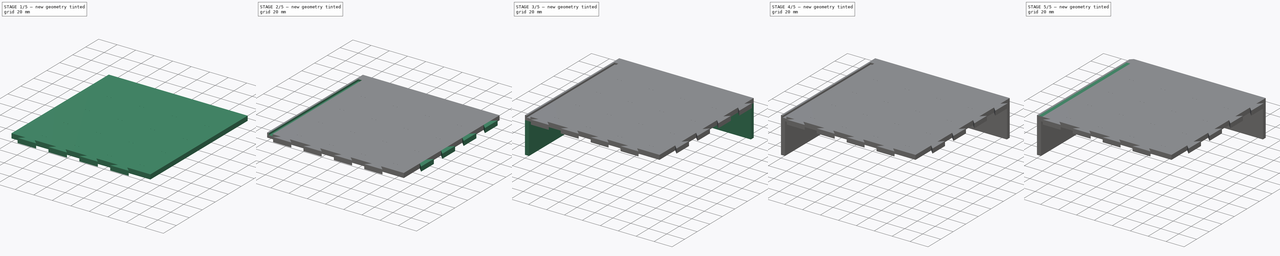
[diagram: build sequence overview — one tinted view per stage of 5, left to right]
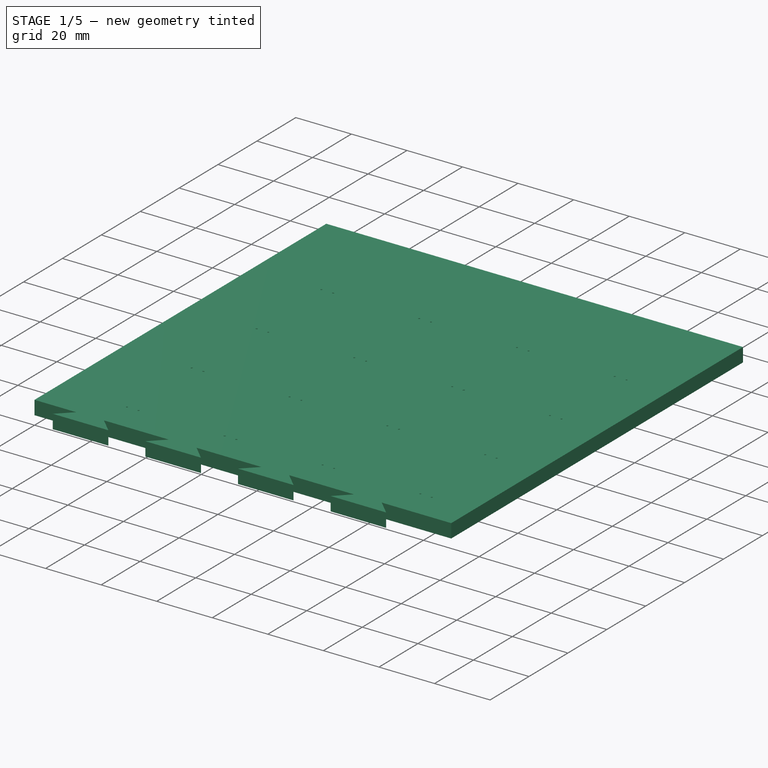
[diagram: stage 1 of 5 — iso view after this stage's code; geometry added in this stage tinted green]
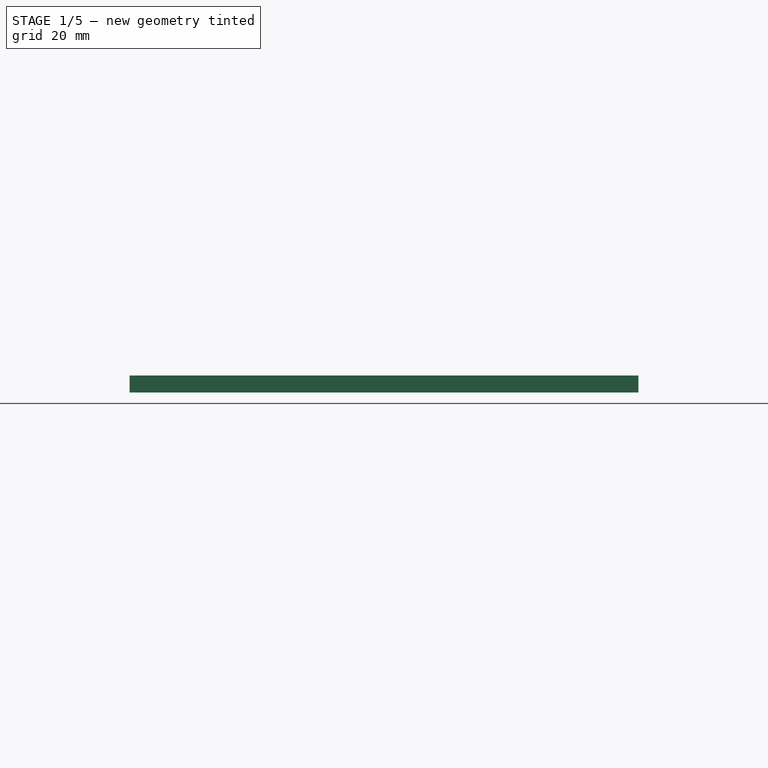
[diagram: stage 1 of 5 — front view after this stage's code; geometry added in this stage tinted green]
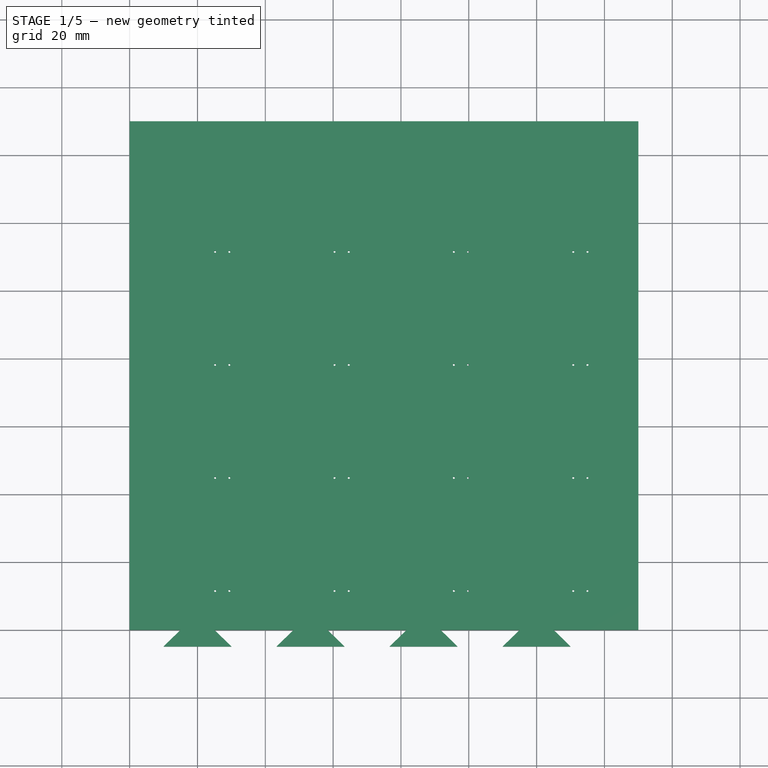
[diagram: stage 1 of 5 — top view after this stage's code; geometry added in this stage tinted green]
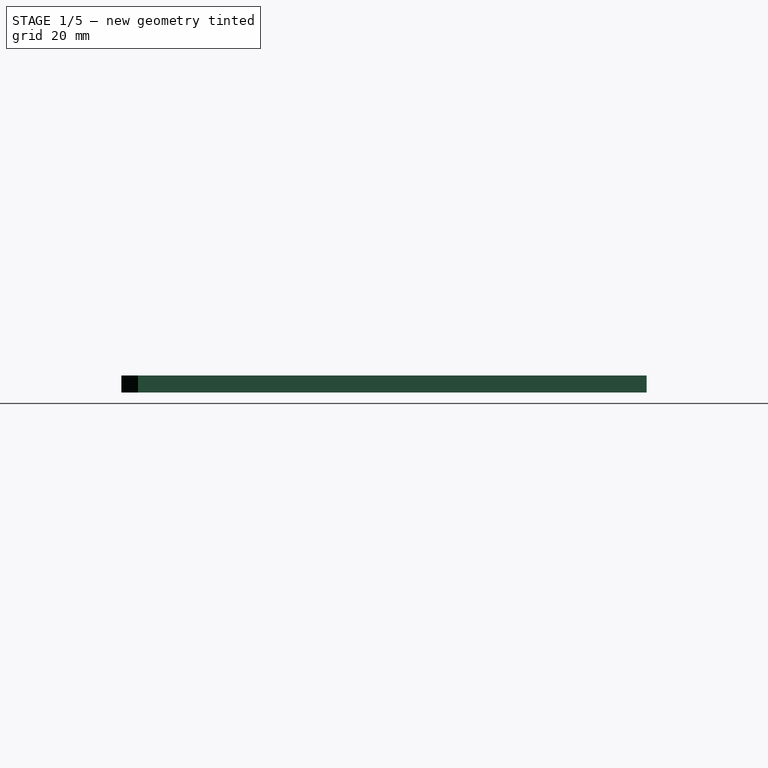
[diagram: stage 1 of 5 — right view after this stage's code; geometry added in this stage tinted green]
FCSTD DOCUMENT  (FreeCAD 0.19R24267 +148 (Git))
Label: Lijevi gornji dio ispravak Led cube
License: All rights reserved
LicenseURL: http://en.wikipedia.org/wiki/All_rights_reserved
objects: Sketcher::SketchObject×15, PartDesign::Pad×7, PartDesign::Pocket×7, PartDesign::LinearPattern×4, PartDesign::Chamfer×4, PartDesign::Hole×1, PartDesign::Body×1
note: 58 computed .brp shape members not serialized (recipe doc carries the construction recipe); baked Part::Feature solids carry a one-line shape summary decoded from their .brp

FEATURE [Sketcher::SketchObject] Sketch
  FullyConstrained = true
  MapMode = 5
  Support = -> [XY_Plane]
  sketch-geometry (4):
    g0: LineSegment StartX=0 StartY=0 StartZ=0 EndX=150 EndY=0 EndZ=0
    g1: LineSegment StartX=150 StartY=0 StartZ=0 EndX=150 EndY=150 EndZ=0
    g2: LineSegment StartX=150 StartY=150 StartZ=0 EndX=0 EndY=150 EndZ=0
    g3: LineSegment StartX=0 StartY=150 StartZ=0 EndX=0 EndY=0 EndZ=0
  constraints (11):
    c: Coincident(g0,g1)
    c: Coincident(g1,g2)
    c: Coincident(g2,g3)
    c: Coincident(g3,g0)
    c: Horizontal(g0)
    c: Horizontal(g2)
    c: Vertical(g1)
    c: Vertical(g3)
    c: Coincident(g0,g-1)
    c: DistanceX(g2,g2) = 150
    c: DistanceY(g1,g1) = 150
FEATURE [PartDesign::Pad] Pad
  Direction = (1,1,1)
  Length = 5
  Length2 = 100
  Profile = -> Sketch
  Type = 0
FEATURE [Sketcher::SketchObject] Sketch001
  FullyConstrained = true
  MapMode = 5
  Placement = pos=(0,0,5) rot=(0,0,1;0rad)
  Support = -> [Pad]
  sketch-geometry (20):
    g0: LineSegment StartX=0 StartY=0 StartZ=0 EndX=0 EndY=150 EndZ=0
    g1: LineSegment StartX=0 StartY=150 StartZ=0 EndX=150 EndY=150 EndZ=0
    g2: LineSegment StartX=150 StartY=150 StartZ=0 EndX=150 EndY=0 EndZ=0
    g3: LineSegment StartX=135 StartY=0 StartZ=0 EndX=135 EndY=11.5 EndZ=0
    g4: LineSegment StartX=135 StartY=11.5 StartZ=0 EndX=150 EndY=11.5 EndZ=0
    g5: Circle CenterX=135 CenterY=11.5 CenterZ=0 NormalX=0 NormalY=0 NormalZ=1 AngleXU=0 Radius=0.6
    g6: LineSegment StartX=135 StartY=11.5 StartZ=0 EndX=130.8 EndY=11.5 EndZ=0
    g7: Circle CenterX=130.8 CenterY=11.5 CenterZ=0 NormalX=0 NormalY=0 NormalZ=1 AngleXU=0 Radius=0.47
    g8: LineSegment StartX=130.8 StartY=11.5 StartZ=0 EndX=99.8 EndY=11.5 EndZ=0
    g9: Circle CenterX=99.8 CenterY=11.5 CenterZ=0 NormalX=0 NormalY=0 NormalZ=1 AngleXU=0 Radius=0.6
    g10: LineSegment StartX=99.8 StartY=11.5 StartZ=0 EndX=95.6 EndY=11.5 EndZ=0
    g11: Circle CenterX=95.6 CenterY=11.5 CenterZ=0 NormalX=0 NormalY=0 NormalZ=1 AngleXU=0 Radius=0.6
    g12: LineSegment StartX=95.6 StartY=11.5 StartZ=0 EndX=64.6 EndY=11.5 EndZ=0
    g13: Circle CenterX=64.6 CenterY=11.5 CenterZ=0 NormalX=0 NormalY=0 NormalZ=1 AngleXU=0 Radius=0.6
    g14: LineSegment StartX=64.6 StartY=11.5 StartZ=0 EndX=60.4 EndY=11.5 EndZ=0
    g15: Circle CenterX=60.4 CenterY=11.5 CenterZ=0 NormalX=0 NormalY=0 NormalZ=1 AngleXU=0 Radius=0.6
    g16: LineSegment StartX=60.4 StartY=11.5 StartZ=0 EndX=29.4 EndY=11.5 EndZ=0
    g17: Circle CenterX=29.4 CenterY=11.5 CenterZ=0 NormalX=0 NormalY=0 NormalZ=1 AngleXU=0 Radius=0.6
    g18: LineSegment StartX=29.4 StartY=11.5 StartZ=0 EndX=25.2 EndY=11.5 EndZ=0
    g19: Circle CenterX=25.2 CenterY=11.5 CenterZ=0 NormalX=0 NormalY=0 NormalZ=1 AngleXU=0 Radius=0.6
  constraints (53):
    c: Coincident(g0,g-1)
    c: PointOnObject(g0,g-2)
    c: DistanceY(g0,g0) = 150
    c: Coincident(g1,g0)
    c: Horizontal(g1)
    c: DistanceX(g1,g1) = 150
    c: Coincident(g2,g1)
    c: Vertical(g2)
    c: DistanceY(g2,g2) = 150
    c: PointOnObject(g3,g-1)
    c: Vertical(g3)
    c: DistanceY(g3,g3) = 11.5
    c: Coincident(g4,g3)
    c: PointOnObject(g4,g2)
    c: Horizontal(g4)
    c: DistanceX(g4,g4) = 15
    c: Coincident(g5,g3)
    c: Radius(g5) = 0.6
    c: Coincident(g6,g5)
    c: Horizontal(g6)
    c: DistanceX(g6,g6) = 4.2
    c: Coincident(g7,g6)
    c: Radius(g7) = 0.47
    c: Coincident(g8,g7)
    c: Horizontal(g8)
    c: DistanceX(g8,g8) = 31
    c: Coincident(g9,g8)
    c: Radius(g9) = 0.6
    c: Coincident(g10,g9)
    c: Horizontal(g10)
    c: Coincident(g11,g10)
    c: Radius(g11) = 0.6
    c: DistanceX(g10,g10) = 4.2
    c: Coincident(g12,g11)
    c: Horizontal(g12)
    c: DistanceX(g12,g12) = 31
    c: Coincident(g13,g12)
    c: Radius(g13) = 0.6
    c: Coincident(g14,g13)
    c: Horizontal(g14)
    c: DistanceX(g14,g14) = 4.2
    c: Coincident(g15,g14)
    c: Radius(g15) = 0.6
    c: Coincident(g16,g15)
    c: Horizontal(g16)
    c: DistanceX(g16,g16) = 31
    c: Coincident(g17,g16)
    c: Radius(g17) = 0.6
    c: Coincident(g18,g17)
    c: Horizontal(g18)
    c: DistanceX(g18,g18) = 4.2
    c: Coincident(g19,g18)
    c: Radius(g19) = 0.6
FEATURE [PartDesign::Hole] Hole
  BaseFeature = -> Pad
  Depth = 25
  DepthType = 0
  Diameter = 0.6
  DrillForDepth = false
  DrillPoint = 1
  DrillPointAngle = 118
  HoleCutCountersinkAngle = 90
  HoleCutCustomValues = false
  HoleCutDepth = 0
  HoleCutDiameter = 6.1
  HoleCutType = 0
  ModelActualThread = false
  Profile = -> Sketch001
  Tapered = false
  TaperedAngle = 90
  ThreadAngle = 0
  ThreadClass = 0
  ThreadCutOffInner = 0
  ThreadCutOffOuter = 0
  ThreadDirection = 0
  ThreadFit = 0
  ThreadPitch = 0
  ThreadSize = 0
  ThreadType = 0
  Threaded = false
FEATURE [PartDesign::LinearPattern] LinearPattern
  BaseFeature = -> Hole
  Direction = -> Y_Axis
  Length = 100
  Occurrences = 4
  Originals = -> [Hole]
FEATURE [Sketcher::SketchObject] Sketch002
  FullyConstrained = true
  MapMode = 5
  Placement = pos=(0,0,5) rot=(0,0,1;0rad)
  Support = -> [LinearPattern]
  sketch-geometry (6):
    g0: LineSegment StartX=0 StartY=0 StartZ=0 EndX=0 EndY=150 EndZ=0
    g1: LineSegment StartX=0 StartY=0 StartZ=0 EndX=15 EndY=0 EndZ=0
    g2: LineSegment StartX=15 StartY=0 StartZ=0 EndX=25 EndY=0 EndZ=0
    g3: LineSegment StartX=15 StartY=0 StartZ=0 EndX=10 EndY=-4.89898 EndZ=0
    g4: LineSegment StartX=10 StartY=-4.89898 StartZ=0 EndX=30 EndY=-4.89898 EndZ=0
    g5: LineSegment StartX=25 StartY=0 StartZ=0 EndX=30 EndY=-4.89898 EndZ=0
  constraints (17):
    c: Coincident(g0,g-1)
    c: PointOnObject(g0,g-2)
    c: DistanceY(g0,g0) = 150
    c: Coincident(g1,g-1)
    c: Horizontal(g1)
    c: DistanceX(g1,g1) = 15
    c: Coincident(g2,g1)
    c: PointOnObject(g2,g-1)
    c: DistanceX(g2,g2) = 10
    c: Coincident(g3,g2)
    c: Distance(g3) = 7
    c: Coincident(g4,g3)
    c: Horizontal(g4)
    c: DistanceX(g4,g4) = 20
    c: Coincident(g5,g2)
    c: Coincident(g5,g4)
    c: Distance(g5) = 7
FEATURE [PartDesign::Pad] Pad001
  BaseFeature = -> LinearPattern
  Direction = (1,1,1)
  Length = 5
  Length2 = 100
  Profile = -> Sketch002
  Reversed = true
  Type = 0
FEATURE [PartDesign::LinearPattern] LinearPattern001
  BaseFeature = -> Pad001
  Direction = -> X_Axis
  Length = 100
  Occurrences = 4
  Originals = -> [Pad001]
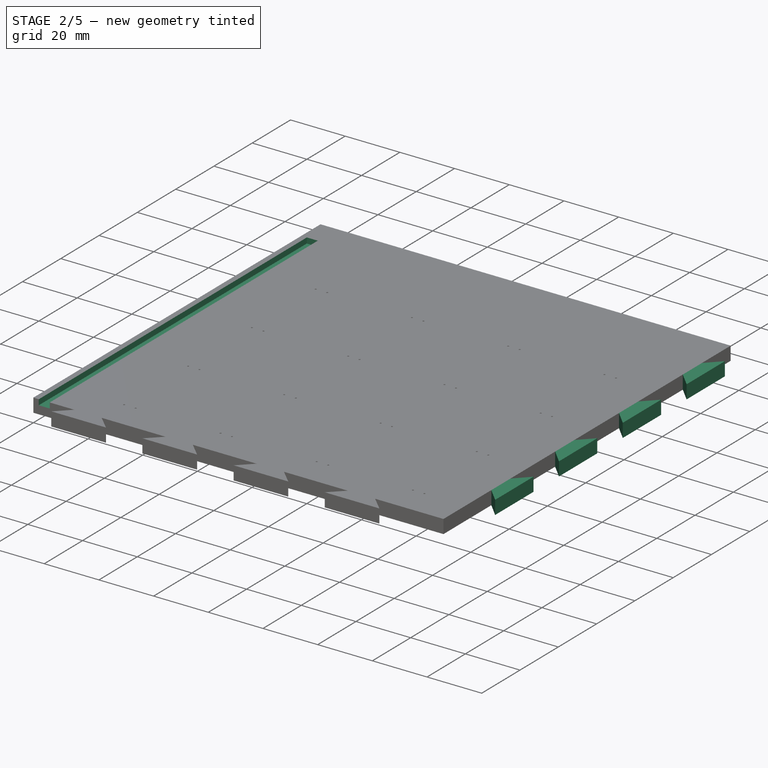
[diagram: stage 2 of 5 — iso view after this stage's code; geometry added in this stage tinted green]
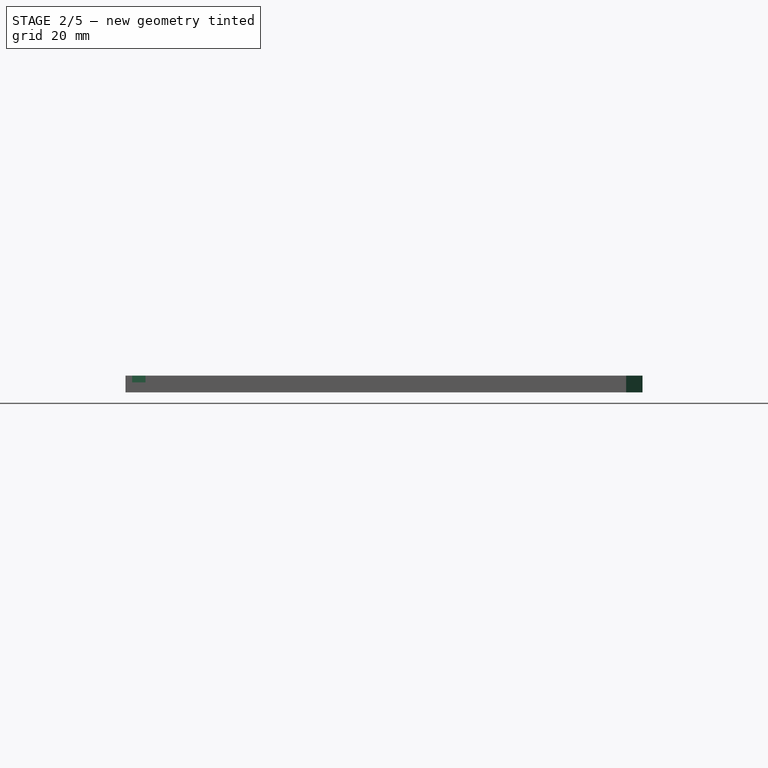
[diagram: stage 2 of 5 — front view after this stage's code; geometry added in this stage tinted green]
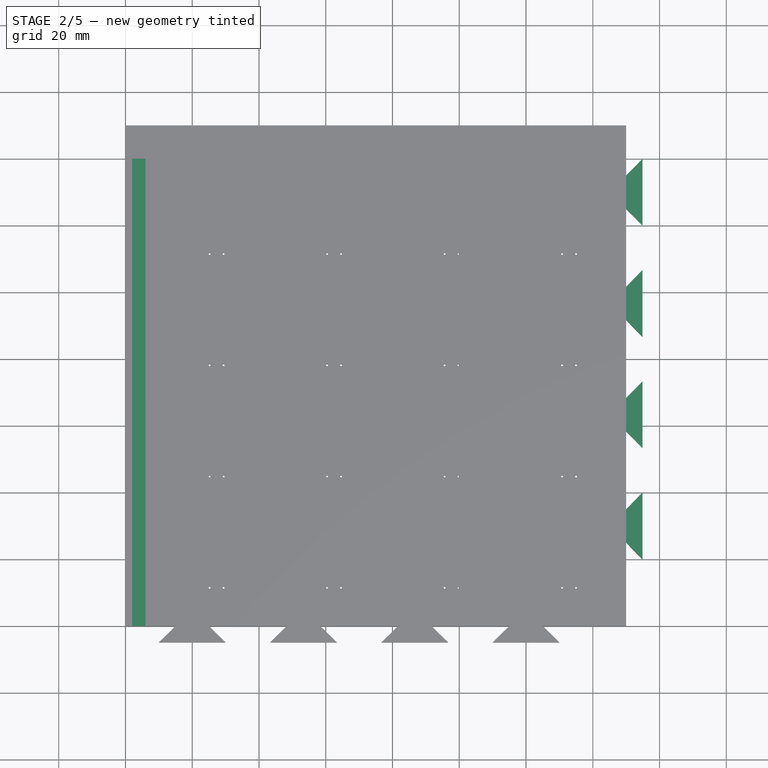
[diagram: stage 2 of 5 — top view after this stage's code; geometry added in this stage tinted green]
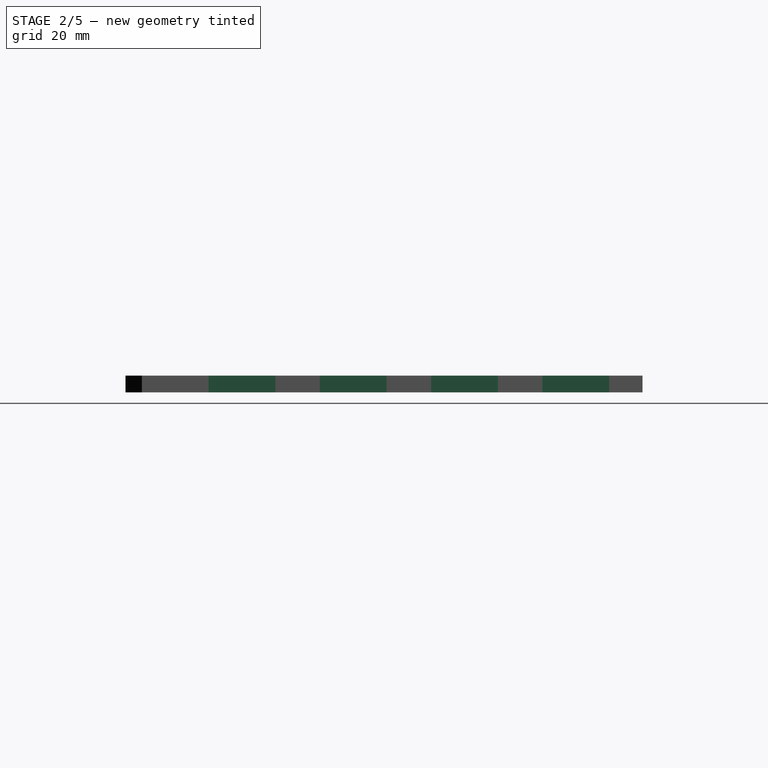
[diagram: stage 2 of 5 — right view after this stage's code; geometry added in this stage tinted green]
FEATURE [Sketcher::SketchObject] Sketch003
  FullyConstrained = true
  MapMode = 5
  Placement = pos=(0,0,5) rot=(0,0,1;0rad)
  Support = -> [LinearPattern001]
  sketch-geometry (7):
    g0: LineSegment StartX=0 StartY=0 StartZ=0 EndX=0 EndY=150 EndZ=0
    g1: LineSegment StartX=0 StartY=150 StartZ=0 EndX=150 EndY=150 EndZ=0
    g2: LineSegment StartX=150 StartY=150 StartZ=0 EndX=150 EndY=135 EndZ=0
    g3: LineSegment StartX=150 StartY=135 StartZ=0 EndX=150 EndY=125 EndZ=0
    g4: LineSegment StartX=150 StartY=135 StartZ=0 EndX=154.899 EndY=140 EndZ=0
    g5: LineSegment StartX=154.899 StartY=140 StartZ=0 EndX=154.899 EndY=120 EndZ=0
    g6: LineSegment StartX=150 StartY=125 StartZ=0 EndX=154.899 EndY=120 EndZ=0
  constraints (20):
    c: Coincident(g0,g-1)
    c: PointOnObject(g0,g-2)
    c: DistanceY(g0,g0) = 150
    c: Coincident(g1,g0)
    c: Horizontal(g1)
    c: DistanceX(g1,g1) = 150
    c: Coincident(g2,g1)
    c: Vertical(g2)
    c: DistanceY(g2,g2) = 15
    c: Coincident(g3,g2)
    c: Vertical(g3)
    c: DistanceY(g3,g3) = 10
    c: Coincident(g4,g3)
    c: Distance(g4) = 7
    c: Coincident(g5,g4)
    c: Vertical(g5)
    c: DistanceY(g5,g5) = 20
    c: Coincident(g6,g3)
    c: Coincident(g6,g5)
    c: Distance(g6) = 7
FEATURE [PartDesign::Pad] Pad002
  BaseFeature = -> LinearPattern001
  Direction = (1,1,1)
  Length = 5
  Length2 = 100
  Profile = -> Sketch003
  Reversed = true
  Type = 0
FEATURE [PartDesign::LinearPattern] LinearPattern002
  BaseFeature = -> Pad002
  Direction = -> Y_Axis
  Length = 100
  Occurrences = 4
  Originals = -> [Pad002]
  Reversed = true
FEATURE [Sketcher::SketchObject] Sketch004
  FullyConstrained = true
  MapMode = 5
  Placement = pos=(0,0,8) rot=(0,0,1;0rad)
  sketch-geometry (6):
    g0: LineSegment StartX=0 StartY=0 StartZ=0 EndX=0 EndY=150 EndZ=0
    g1: LineSegment StartX=0 StartY=0 StartZ=0 EndX=2 EndY=0 EndZ=0
    g2: LineSegment StartX=2 StartY=0 StartZ=0 EndX=6 EndY=0 EndZ=0
    g3: LineSegment StartX=6 StartY=0 StartZ=0 EndX=6 EndY=140 EndZ=0
    g4: LineSegment StartX=6 StartY=140 StartZ=0 EndX=2 EndY=140 EndZ=0
    g5: LineSegment StartX=2 StartY=140 StartZ=0 EndX=2 EndY=0 EndZ=0
  constraints (17):
    c: Coincident(g0,g-1)
    c: PointOnObject(g0,g-2)
    c: DistanceY(g0,g0) = 150
    c: Coincident(g1,g-1)
    c: PointOnObject(g1,g-1)
    c: DistanceX(g1,g1) = 2
    c: Coincident(g2,g3)
    c: Coincident(g3,g4)
    c: Coincident(g4,g5)
    c: Coincident(g5,g2)
    c: Horizontal(g2)
    c: Horizontal(g4)
    c: Vertical(g3)
    c: Vertical(g5)
    c: Coincident(g2,g1)
    c: DistanceX(g2,g2) = 4
    c: DistanceY(g5,g5) = 140
FEATURE [Sketcher::SketchObject] Sketch005
  FullyConstrained = true
  MapMode = 5
  Placement = pos=(0,0,8) rot=(0,0,1;0rad)
  sketch-geometry (7):
    g0: LineSegment StartX=0 StartY=0 StartZ=0 EndX=0 EndY=150 EndZ=0
    g1: LineSegment StartX=0 StartY=150 StartZ=0 EndX=150 EndY=150 EndZ=0
    g2: LineSegment StartX=150 StartY=150 StartZ=0 EndX=150 EndY=148 EndZ=0
    g3: LineSegment StartX=150 StartY=148 StartZ=0 EndX=150 EndY=144 EndZ=0
    g4: LineSegment StartX=150 StartY=148 StartZ=0 EndX=10 EndY=148 EndZ=0
    g5: LineSegment StartX=10 StartY=148 StartZ=0 EndX=10 EndY=144 EndZ=0
    g6: LineSegment StartX=10 StartY=144 StartZ=0 EndX=150 EndY=144 EndZ=0
  constraints (21):
    c: Coincident(g0,g-1)
    c: PointOnObject(g0,g-2)
    c: DistanceY(g0,g0) = 150
    c: Coincident(g1,g0)
    c: Horizontal(g1)
    c: DistanceX(g1,g1) = 150
    c: Coincident(g2,g1)
    c: Vertical(g2)
    c: DistanceY(g2,g2) = 2
    c: Coincident(g3,g2)
    c: Vertical(g3)
    c: DistanceY(g3,g3) = 4
    c: Coincident(g4,g3)
    c: Horizontal(g4)
    c: DistanceX(g4,g4) = 140
    c: Coincident(g5,g4)
    c: Vertical(g5)
    c: DistanceY(g5,g5) = 4
    c: Coincident(g6,g5)
    c: Horizontal(g6)
    c: DistanceX(g6,g6) = 140
FEATURE [PartDesign::Pocket] Pocket
  BaseFeature = -> LinearPattern002
  Length = 5
  Length2 = 100
  Profile = -> Sketch004
  Type = 0
FEATURE [PartDesign::Pocket] Pocket001
  BaseFeature = -> Pocket
  Length = 3
  Length2 = 100
  Profile = -> Sketch005
  Type = 0
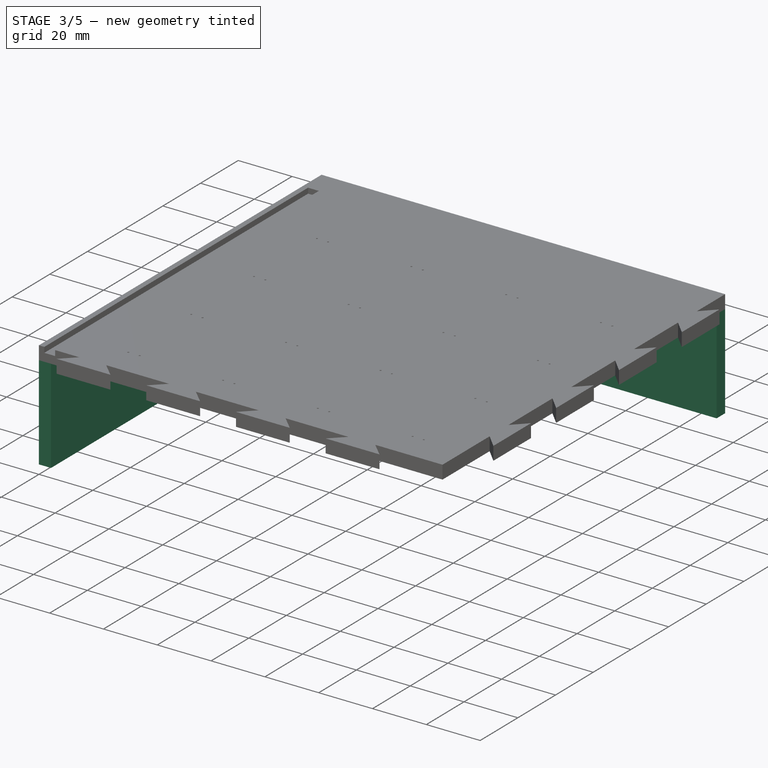
[diagram: stage 3 of 5 — iso view after this stage's code; geometry added in this stage tinted green]
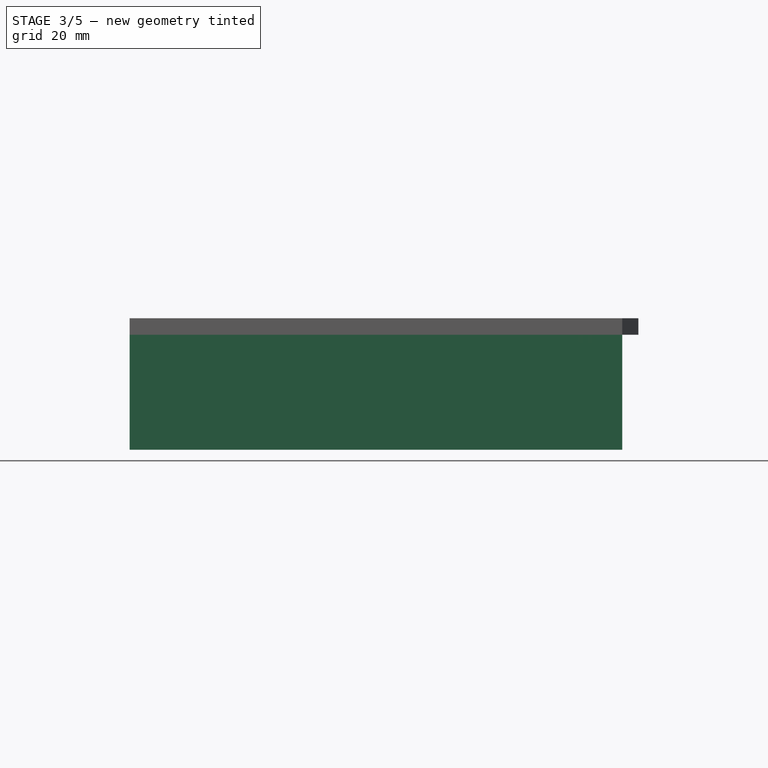
[diagram: stage 3 of 5 — front view after this stage's code; geometry added in this stage tinted green]
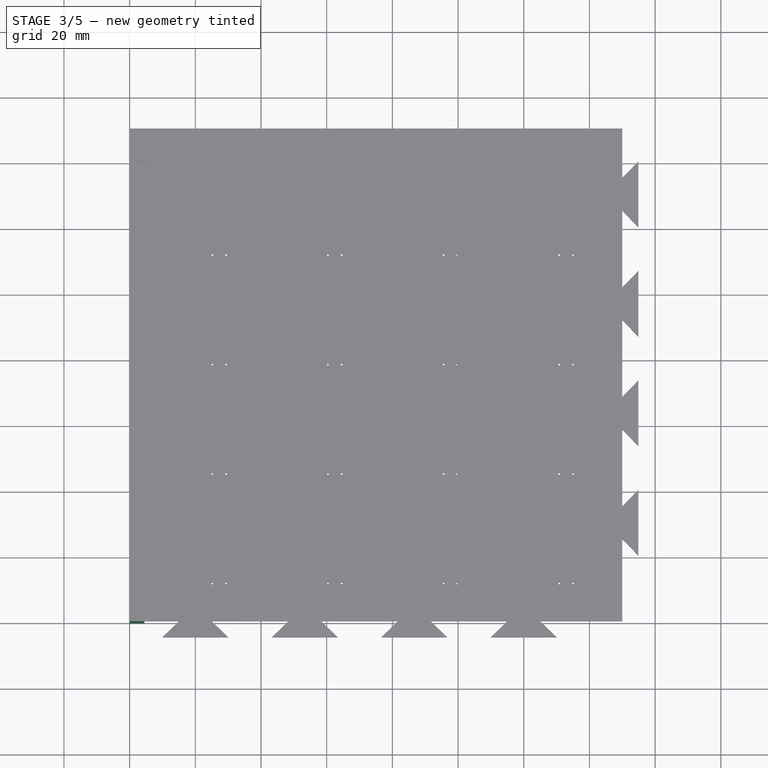
[diagram: stage 3 of 5 — top view after this stage's code; geometry added in this stage tinted green]
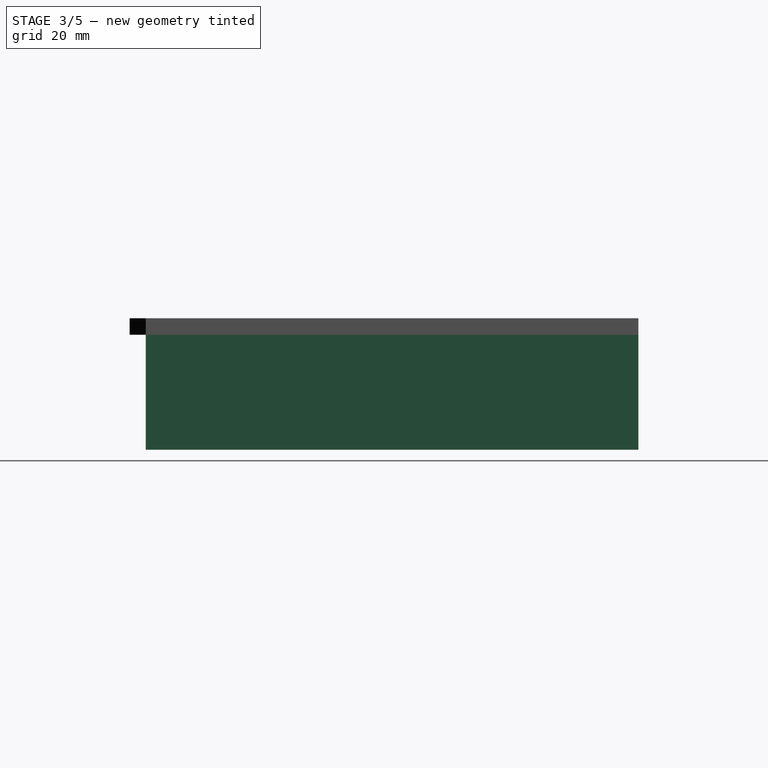
[diagram: stage 3 of 5 — right view after this stage's code; geometry added in this stage tinted green]
FEATURE [Sketcher::SketchObject] Sketch006
  FullyConstrained = true
  MapMode = 5
  Placement = pos=(0,0,0) rot=(1,0,0;3.14159rad)
  Support = -> [Pocket001]
  sketch-geometry (8):
    g0: LineSegment StartX=0 StartY=0 StartZ=0 EndX=0 EndY=-150 EndZ=0
    g1: LineSegment StartX=0 StartY=-150 StartZ=0 EndX=150 EndY=-150 EndZ=0
    g2: LineSegment StartX=150 StartY=-150 StartZ=0 EndX=150 EndY=-145.5 EndZ=0
    g3: LineSegment StartX=150 StartY=-145.5 StartZ=0 EndX=20 EndY=-145.5 EndZ=0
    g4: LineSegment StartX=0 StartY=0 StartZ=0 EndX=4.5 EndY=0 EndZ=0
    g5: LineSegment StartX=4.5 StartY=0 StartZ=0 EndX=4.5 EndY=-130 EndZ=0
    g6: LineSegment StartX=4.5 StartY=-130 StartZ=0 EndX=20 EndY=-130 EndZ=0
    g7: LineSegment StartX=20 StartY=-130 StartZ=0 EndX=20 EndY=-145.5 EndZ=0
  constraints (24):
    c: Coincident(g0,g-1)
    c: PointOnObject(g0,g-2)
    c: DistanceY(g0,g0) = 150
    c: Coincident(g1,g0)
    c: Horizontal(g1)
    c: DistanceX(g1,g1) = 150
    c: Coincident(g2,g1)
    c: Vertical(g2)
    c: DistanceY(g2,g2) = 4.5
    c: Coincident(g3,g2)
    c: Horizontal(g3)
    c: DistanceX(g3,g3) = 130
    c: Coincident(g4,g0)
    c: PointOnObject(g4,g-1)
    c: DistanceX(g4,g4) = 4.5
    c: Coincident(g5,g4)
    c: Vertical(g5)
    c: DistanceY(g5,g5) = 130
    c: Coincident(g6,g5)
    c: Horizontal(g6)
    c: DistanceX(g6,g6) = 15.5
    c: Coincident(g7,g6)
    c: Vertical(g7)
    c: DistanceY(g7,g7) = 15.5
FEATURE [PartDesign::Pad] Pad003
  BaseFeature = -> Pocket001
  Direction = (1,1,1)
  Length = 35
  Length2 = 100
  Profile = -> Sketch006
  Type = 0
FEATURE [Sketcher::SketchObject] Sketch007
  FullyConstrained = true
  MapMode = 5
  Placement = pos=(0,0,0) rot=(0.57735,-0.57735,-0.57735;2.0944rad)
  Support = -> [Pad003]
  sketch-geometry (7):
    g0: LineSegment StartX=0 StartY=0 StartZ=0 EndX=0 EndY=-150 EndZ=0
    g1: LineSegment StartX=0 StartY=-150 StartZ=0 EndX=5 EndY=-150 EndZ=0
    g2: LineSegment StartX=5 StartY=-150 StartZ=0 EndX=5 EndY=-145 EndZ=0
    g3: LineSegment StartX=5 StartY=-145 StartZ=0 EndX=18 EndY=-145 EndZ=0
    g4: LineSegment StartX=18 StartY=-145 StartZ=0 EndX=18 EndY=-132 EndZ=0
    g5: LineSegment StartX=18 StartY=-132 StartZ=0 EndX=5 EndY=-132 EndZ=0
    g6: LineSegment StartX=5 StartY=-132 StartZ=0 EndX=5 EndY=-145 EndZ=0
  constraints (20):
    c: Coincident(g0,g-1)
    c: PointOnObject(g0,g-2)
    c: DistanceY(g0,g0) = 150
    c: Coincident(g1,g0)
    c: Horizontal(g1)
    c: DistanceX(g1,g1) = 5
    c: Coincident(g2,g1)
    c: Vertical(g2)
    c: DistanceY(g2,g2) = 5
    c: Coincident(g3,g4)
    c: Coincident(g4,g5)
    c: Coincident(g5,g6)
    c: Coincident(g6,g3)
    c: Horizontal(g3)
    c: Horizontal(g5)
    c: Vertical(g4)
    c: Vertical(g6)
    c: Coincident(g3,g2)
    c: DistanceX(g3,g3) = 13
    c: DistanceY(g4,g4) = 13
FEATURE [PartDesign::Pocket] Pocket002
  BaseFeature = -> Pad003
  Length = 3
  Length2 = 100
  Profile = -> Sketch007
  Type = 0
FEATURE [Sketcher::SketchObject] Sketch008
  FullyConstrained = true
  MapMode = 5
  Placement = pos=(0,0,0) rot=(1,0,0;3.14159rad)
  Support = -> [Pocket002]
  sketch-geometry (97):
    g0: LineSegment StartX=0 StartY=0 StartZ=0 EndX=135 EndY=0 EndZ=0
    g1: LineSegment StartX=135 StartY=0 StartZ=0 EndX=135 EndY=-11.5 EndZ=0
    g2: LineSegment StartX=135 StartY=-11.5 StartZ=0 EndX=130.8 EndY=-11.5 EndZ=0
    g3: LineSegment StartX=135 StartY=-11.5 StartZ=0 EndX=135 EndY=-14 EndZ=0
    g4: LineSegment StartX=135 StartY=-14 StartZ=0 EndX=136.5 EndY=-14 EndZ=0
    g5: LineSegment StartX=136.5 StartY=-14 StartZ=0 EndX=138 EndY=-14 EndZ=0
    g6: LineSegment StartX=138 StartY=-14 StartZ=0 EndX=138 EndY=-40 EndZ=0
    g7: LineSegment StartX=138 StartY=-40 StartZ=0 EndX=136.5 EndY=-40 EndZ=0
    g8: LineSegment StartX=136.5 StartY=-40 StartZ=0 EndX=136.5 EndY=-14 EndZ=0
    g9: LineSegment StartX=138 StartY=-14 StartZ=0 EndX=139.4 EndY=-14 EndZ=0
    g10: LineSegment StartX=139.4 StartY=-14 StartZ=0 EndX=140.9 EndY=-14 EndZ=0
    g11: LineSegment StartX=140.9 StartY=-14 StartZ=0 EndX=140.9 EndY=-40 EndZ=0
    g12: LineSegment StartX=140.9 StartY=-40 StartZ=0 EndX=139.4 EndY=-40 EndZ=0
    g13: LineSegment StartX=139.4 StartY=-40 StartZ=0 EndX=139.4 EndY=-14 EndZ=0
    g14: LineSegment StartX=130.8 StartY=-11.5 StartZ=0 EndX=130.8 EndY=-14 EndZ=0
    g15: LineSegment StartX=130.8 StartY=-14 StartZ=0 EndX=129.3 EndY=-14 EndZ=0
    g16: LineSegment StartX=129.3 StartY=-14 StartZ=0 EndX=127.8 EndY=-14 EndZ=0
    g17: LineSegment StartX=127.8 StartY=-14 StartZ=0 EndX=127.8 EndY=-40 EndZ=0
    g18: LineSegment StartX=127.8 StartY=-40 StartZ=0 EndX=129.3 EndY=-40 EndZ=0
    g19: LineSegment StartX=129.3 StartY=-40 StartZ=0 EndX=129.3 EndY=-14 EndZ=0
    g20: LineSegment StartX=127.8 StartY=-14 StartZ=0 EndX=126.4 EndY=-14 EndZ=0
    g21: LineSegment StartX=126.4 StartY=-14 StartZ=0 EndX=124.9 EndY=-14 EndZ=0
    g22: LineSegment StartX=124.9 StartY=-14 StartZ=0 EndX=124.9 EndY=-40 EndZ=0
    g23: LineSegment StartX=124.9 StartY=-40 StartZ=0 EndX=126.4 EndY=-40 EndZ=0
    g24: LineSegment StartX=126.4 StartY=-40 StartZ=0 EndX=126.4 EndY=-14 EndZ=0
    g25: LineSegment StartX=130.8 StartY=-11.5 StartZ=0 EndX=99.8 EndY=-11.5 EndZ=0
    g26: LineSegment StartX=99.8 StartY=-11.5 StartZ=0 EndX=99.8 EndY=-14 EndZ=0
    g27: LineSegment StartX=99.8 StartY=-14 StartZ=0 EndX=101.3 EndY=-14 EndZ=0
    g28: LineSegment StartX=101.3 StartY=-14 StartZ=0 EndX=102.8 EndY=-14 EndZ=0
    g29: LineSegment StartX=102.8 StartY=-14 StartZ=0 EndX=102.8 EndY=-40 EndZ=0
    g30: LineSegment StartX=102.8 StartY=-40 StartZ=0 EndX=101.3 EndY=-40 EndZ=0
    g31: LineSegment StartX=101.3 StartY=-40 StartZ=0 EndX=101.3 EndY=-14 EndZ=0
    g32: LineSegment StartX=102.8 StartY=-14 StartZ=0 EndX=104.2 EndY=-14 EndZ=0
    g33: LineSegment StartX=104.2 StartY=-14 StartZ=0 EndX=105.7 EndY=-14 EndZ=0
    g34: LineSegment StartX=105.7 StartY=-14 StartZ=0 EndX=105.7 EndY=-40 EndZ=0
    g35: LineSegment StartX=105.7 StartY=-40 StartZ=0 EndX=104.2 EndY=-40 EndZ=0
    g36: LineSegment StartX=104.2 StartY=-40 StartZ=0 EndX=104.2 EndY=-14 EndZ=0
    g37: LineSegment StartX=99.8 StartY=-11.5 StartZ=0 EndX=95.6 EndY=-11.5 EndZ=0
    g38: LineSegment StartX=95.6 StartY=-11.5 StartZ=0 EndX=95.6 EndY=-14 EndZ=0
    g39: LineSegment StartX=95.6 StartY=-14 StartZ=0 EndX=94.1 EndY=-14 EndZ=0
    g40: LineSegment StartX=94.1 StartY=-14 StartZ=0 EndX=92.6 EndY=-14 EndZ=0
    g41: LineSegment StartX=92.6 StartY=-14 StartZ=0 EndX=92.6 EndY=-40 EndZ=0
    g42: LineSegment StartX=92.6 StartY=-40 StartZ=0 EndX=94.1 EndY=-40 EndZ=0
    g43: LineSegment StartX=94.1 StartY=-40 StartZ=0 EndX=94.1 EndY=-14 EndZ=0
    g44: LineSegment StartX=92.6 StartY=-14 StartZ=0 EndX=91.2 EndY=-14 EndZ=0
    g45: LineSegment StartX=91.2 StartY=-14 StartZ=0 EndX=89.7 EndY=-14 EndZ=0
    g46: LineSegment StartX=89.7 StartY=-14 StartZ=0 EndX=89.7 EndY=-40 EndZ=0
    g47: LineSegment StartX=89.7 StartY=-40 StartZ=0 EndX=91.2 EndY=-40 EndZ=0
    g48: LineSegment StartX=91.2 StartY=-40 StartZ=0 EndX=91.2 EndY=-14 EndZ=0
    g49: LineSegment StartX=95.6 StartY=-11.5 StartZ=0 EndX=64.6 EndY=-11.5 EndZ=0
    g50: LineSegment StartX=64.6 StartY=-11.5 StartZ=0 EndX=64.6 EndY=-14 EndZ=0
    g51: LineSegment StartX=64.6 StartY=-14 StartZ=0 EndX=66.1 EndY=-14 EndZ=0
    g52: LineSegment StartX=64.6 StartY=-11.5 StartZ=0 EndX=60.4 EndY=-11.5 EndZ=0
    g53: LineSegment StartX=60.4 StartY=-11.5 StartZ=0 EndX=60.4 EndY=-14 EndZ=0
    g54: LineSegment StartX=60.4 StartY=-14 StartZ=0 EndX=58.9 EndY=-14 EndZ=0
    g55: LineSegment StartX=66.1 StartY=-14 StartZ=0 EndX=67.6 EndY=-14 EndZ=0
    g56: LineSegment StartX=67.6 StartY=-14 StartZ=0 EndX=67.6 EndY=-40 EndZ=0
    g57: LineSegment StartX=67.6 StartY=-40 StartZ=0 EndX=66.1 EndY=-40 EndZ=0
    g58: LineSegment StartX=66.1 StartY=-40 StartZ=0 EndX=66.1 EndY=-14 EndZ=0
    g59: LineSegment StartX=58.9 StartY=-14 StartZ=0 EndX=57.4 EndY=-14 EndZ=0
    g60: LineSegment StartX=57.4 StartY=-14 StartZ=0 EndX=57.4 EndY=-40 EndZ=0
    g61: LineSegment StartX=57.4 StartY=-40 StartZ=0 EndX=58.9 EndY=-40 EndZ=0
    g62: LineSegment StartX=58.9 StartY=-40 StartZ=0 EndX=58.9 EndY=-14 EndZ=0
    g63: LineSegment StartX=67.6 StartY=-14 StartZ=0 EndX=69 EndY=-14 EndZ=0
    g64: LineSegment StartX=57.4 StartY=-14 StartZ=0 EndX=56 EndY=-14 EndZ=0
    g65: LineSegment StartX=56 StartY=-14 StartZ=0 EndX=54.5 EndY=-14 EndZ=0
    g66: LineSegment StartX=54.5 StartY=-14 StartZ=0 EndX=54.5 EndY=-40 EndZ=0
    g67: LineSegment StartX=54.5 StartY=-40 StartZ=0 EndX=56 EndY=-40 EndZ=0
    g68: LineSegment StartX=56 StartY=-40 StartZ=0 EndX=56 EndY=-14 EndZ=0
    g69: LineSegment StartX=69 StartY=-14 StartZ=0 EndX=70.5 EndY=-14 EndZ=0
    g70: LineSegment StartX=70.5 StartY=-14 StartZ=0 EndX=70.5 EndY=-40 EndZ=0
    g71: LineSegment StartX=70.5 StartY=-40 StartZ=0 EndX=69 EndY=-40 EndZ=0
    g72: LineSegment StartX=69 StartY=-40 StartZ=0 EndX=69 EndY=-14 EndZ=0
    g73: LineSegment StartX=60.4 StartY=-11.5 StartZ=0 EndX=29.4 EndY=-11.5 EndZ=0
    g74: LineSegment StartX=29.4 StartY=-11.5 StartZ=0 EndX=29.4 EndY=-14 EndZ=0
    g75: LineSegment StartX=29.4 StartY=-14 StartZ=0 EndX=30.9 EndY=-14 EndZ=0
    g76: LineSegment StartX=29.4 StartY=-11.5 StartZ=0 EndX=25.2 EndY=-11.5 EndZ=0
    g77: LineSegment StartX=25.2 StartY=-11.5 StartZ=0 EndX=25.2 EndY=-14 EndZ=0
    g78: LineSegment StartX=25.2 StartY=-14 StartZ=0 EndX=23.7 EndY=-14 EndZ=0
    g79: LineSegment StartX=30.9 StartY=-14 StartZ=0 EndX=32.4 EndY=-14 EndZ=0
    g80: LineSegment StartX=32.4 StartY=-14 StartZ=0 EndX=32.4 EndY=-40 EndZ=0
    g81: LineSegment StartX=32.4 StartY=-40 StartZ=0 EndX=30.9 EndY=-40 EndZ=0
    g82: LineSegment StartX=30.9 StartY=-40 StartZ=0 EndX=30.9 EndY=-14 EndZ=0
    g83: LineSegment StartX=23.7 StartY=-14 StartZ=0 EndX=22.2 EndY=-14 EndZ=0
    g84: LineSegment StartX=22.2 StartY=-14 StartZ=0 EndX=22.2 EndY=-40 EndZ=0
    g85: LineSegment StartX=22.2 StartY=-40 StartZ=0 EndX=23.7 EndY=-40 EndZ=0
    g86: LineSegment StartX=23.7 StartY=-40 StartZ=0 EndX=23.7 EndY=-14 EndZ=0
    g87: LineSegment StartX=32.4 StartY=-14 StartZ=0 EndX=33.8 EndY=-14 EndZ=0
    g88: LineSegment StartX=22.2 StartY=-14 StartZ=0 EndX=20.8 EndY=-14 EndZ=0
    g89: LineSegment StartX=33.8 StartY=-14 StartZ=0 EndX=35.3 EndY=-14 EndZ=0
    g90: LineSegment StartX=35.3 StartY=-14 StartZ=0 EndX=35.3 EndY=-40 EndZ=0
    g91: LineSegment StartX=35.3 StartY=-40 StartZ=0 EndX=33.8 EndY=-40 EndZ=0
    g92: LineSegment StartX=33.8 StartY=-40 StartZ=0 EndX=33.8 EndY=-14 EndZ=0
    g93: LineSegment StartX=20.8 StartY=-14 StartZ=0 EndX=19.3 EndY=-14 EndZ=0
    g94: LineSegment StartX=19.3 StartY=-14 StartZ=0 EndX=19.3 EndY=-40 EndZ=0
    g95: LineSegment StartX=19.3 StartY=-40 StartZ=0 EndX=20.8 EndY=-40 EndZ=0
    g96: LineSegment StartX=20.8 StartY=-40 StartZ=0 EndX=20.8 EndY=-14 EndZ=0
  constraints (275):
    c: Coincident(g0,g-1)
    c: PointOnObject(g0,g-1)
    c: DistanceX(g0,g0) = 135
    c: Coincident(g1,g0)
    c: Vertical(g1)
    c: DistanceY(g1,g1) = 11.5
    c: Coincident(g2,g1)
    c: Horizontal(g2)
    c: DistanceX(g2,g2) = 4.2
    c: Coincident(g3,g1)
    c: Vertical(g3)
    c: DistanceY(g3,g3) = 2.5
    c: Coincident(g4,g3)
    c: Horizontal(g4)
    c: DistanceX(g4,g4) = 1.5
    c: Coincident(g5,g6)
    c: Coincident(g6,g7)
    c: Coincident(g7,g8)
    c: Coincident(g8,g5)
    c: Horizontal(g5)
    c: Horizontal(g7)
    c: Vertical(g6)
    c: Vertical(g8)
    c: Coincident(g5,g4)
    c: Coincident(g9,g5)
    c: Horizontal(g9)
    c: DistanceX(g5,g5) = 1.5
    c: DistanceX(g9,g9) = 1.4
    c: Coincident(g10,g11)
    c: Coincident(g11,g12)
    c: Coincident(g12,g13)
    c: Coincident(g13,g10)
    c: Horizontal(g10)
    c: Horizontal(g12)
    c: Vertical(g11)
    c: Vertical(g13)
    c: Coincident(g10,g9)
    c: DistanceX(g10,g10) = 1.5
    c: DistanceY(g6,g6) = 26
    c: DistanceY(g13,g13) = 26
    c: Coincident(g14,g2)
    c: Vertical(g14)
    c: DistanceY(g14,g14) = 2.5
    c: Coincident(g15,g14)
    c: Horizontal(g15)
    c: Coincident(g16,g17)
    c: Coincident(g17,g18)
    c: Coincident(g18,g19)
    c: Coincident(g19,g16)
    c: Horizontal(g16)
    c: Horizontal(g18)
    c: Vertical(g17)
    c: Vertical(g19)
    c: Coincident(g16,g15)
    c: Coincident(g20,g16)
    c: Horizontal(g20)
    c: Coincident(g21,g22)
    c: Coincident(g22,g23)
    c: Coincident(g23,g24)
    c: Coincident(g24,g21)
    c: Horizontal(g21)
    c: Horizontal(g23)
    c: Vertical(g22)
    c: Vertical(g24)
    c: Coincident(g21,g20)
    c: DistanceX(g15,g15) = 1.5
    c: DistanceX(g16,g16) = 1.5
    c: DistanceX(g20,g20) = 1.4
    c: DistanceX(g21,g21) = 1.5
    c: DistanceY(g19,g19) = 26
    c: DistanceY(g24,g24) = 26
    c: Coincident(g25,g2)
    c: Horizontal(g25)
    c: DistanceX(g25,g25) = 31
    c: Coincident(g26,g25)
    c: Vertical(g26)
    c: DistanceY(g26,g26) = 2.5
    c: Coincident(g27,g26)
    c: Horizontal(g27)
    c: Coincident(g28,g29)
    c: Coincident(g29,g30)
    c: Coincident(g30,g31)
    c: Coincident(g31,g28)
    c: Horizontal(g28)
    c: Horizontal(g30)
    c: Vertical(g29)
    c: Vertical(g31)
    c: Coincident(g28,g27)
    c: Coincident(g32,g28)
    c: Horizontal(g32)
    c: Coincident(g33,g34)
    c: Coincident(g34,g35)
    c: Coincident(g35,g36)
    c: Coincident(g36,g33)
    c: Horizontal(g33)
    c: Horizontal(g35)
    c: Vertical(g34)
    c: Vertical(g36)
    c: Coincident(g33,g32)
    c: Coincident(g37,g25)
    c: Horizontal(g37)
    c: DistanceX(g27,g27) = 1.5
    c: DistanceX(g28,g28) = 1.5
    c: DistanceX(g32,g32) = 1.4
    c: DistanceX(g33,g33) = 1.5
    c: DistanceX(g37,g37) = 4.2
    c: DistanceY(g31,g31) = 26
    c: DistanceY(g36,g36) = 26
    c: Coincident(g38,g37)
    c: Vertical(g38)
    c: Coincident(g39,g38)
    c: Horizontal(g39)
    c: Coincident(g40,g41)
    c: Coincident(g41,g42)
    c: Coincident(g42,g43)
    c: Coincident(g43,g40)
    c: Horizontal(g40)
    c: Horizontal(g42)
    c: Vertical(g41)
    c: Vertical(g43)
    c: Coincident(g40,g39)
    c: Coincident(g44,g40)
    c: Horizontal(g44)
    c: Coincident(g45,g46)
    c: Coincident(g46,g47)
    c: Coincident(g47,g48)
    c: Coincident(g48,g45)
    c: Horizontal(g45)
    c: Horizontal(g47)
    c: Vertical(g46)
    c: Vertical(g48)
    c: Coincident(g45,g44)
    c: DistanceY(g38,g38) = 2.5
    c: DistanceX(g39,g39) = 1.5
    c: DistanceX(g40,g40) = 1.5
    c: DistanceX(g44,g44) = 1.4
    c: DistanceX(g45,g45) = 1.5
    c: DistanceY(g46,g46) = 26
    c: DistanceY(g41,g41) = 26
    c: Coincident(g49,g37)
    c: Horizontal(g49)
    c: DistanceX(g49,g49) = 31
    c: Coincident(g50,g49)
    c: Vertical(g50)
    c: Coincident(g51,g50)
    c: Horizontal(g51)
    c: Coincident(g52,g49)
    c: Horizontal(g52)
    c: Coincident(g53,g52)
    c: Vertical(g53)
    c: Coincident(g54,g53)
    c: Horizontal(g54)
    c: Coincident(g55,g56)
    c: Coincident(g56,g57)
    c: Coincident(g57,g58)
    c: Coincident(g58,g55)
    c: Horizontal(g55)
    c: Horizontal(g57)
    c: Vertical(g56)
    c: Vertical(g58)
    c: Coincident(g55,g51)
    c: Coincident(g59,g60)
    c: Coincident(g60,g61)
    c: Coincident(g61,g62)
    c: Coincident(g62,g59)
    c: Horizontal(g59)
    c: Horizontal(g61)
    c: Vertical(g60)
    c: Vertical(g62)
    c: Coincident(g59,g54)
    c: Coincident(g63,g55)
    c: Horizontal(g63)
    c: Coincident(g64,g59)
    c: Horizontal(g64)
    c: Coincident(g65,g66)
    c: Coincident(g66,g67)
    c: Coincident(g67,g68)
    c: Coincident(g68,g65)
    c: Horizontal(g65)
    c: Horizontal(g67)
    c: Vertical(g66)
    c: Vertical(g68)
    c: Coincident(g65,g64)
    c: Coincident(g69,g70)
    c: Coincident(g70,g71)
    c: Coincident(g71,g72)
    c: Coincident(g72,g69)
    c: Horizontal(g69)
    c: Horizontal(g71)
    c: Vertical(g70)
    c: Vertical(g72)
    c: Coincident(g69,g63)
    c: DistanceX(g52,g52) = 4.2
    c: DistanceX(g51,g51) = 1.5
    c: DistanceY(g50,g50) = 2.5
    c: DistanceY(g53,g53) = 2.5
    c: DistanceX(g55,g55) = 1.5
    c: DistanceX(g63,g63) = 1.4
    c: DistanceX(g69,g69) = 1.5
    c: DistanceX(g54,g54) = 1.5
    c: DistanceX(g59,g59) = 1.5
    c: DistanceX(g64,g64) = 1.4
    c: DistanceX(g65,g65) = 1.5
    c: DistanceY(g70,g70) = 26
    c: DistanceY(g56,g56) = 26
    c: DistanceY(g62,g62) = 26
    c: DistanceY(g68,g68) = 26
    c: Coincident(g73,g52)
    c: Horizontal(g73)
    c: DistanceX(g73,g73) = 31
    c: Coincident(g74,g73)
    c: Vertical(g74)
    c: Coincident(g75,g74)
    c: Horizontal(g75)
    c: Coincident(g76,g73)
    c: Horizontal(g76)
    c: Coincident(g77,g76)
    c: Vertical(g77)
    c: Coincident(g78,g77)
    c: Horizontal(g78)
    c: Coincident(g79,g80)
    c: Coincident(g80,g81)
    c: Coincident(g81,g82)
    c: Coincident(g82,g79)
    c: Horizontal(g79)
    c: Horizontal(g81)
    c: Vertical(g80)
    c: Vertical(g82)
    c: Coincident(g79,g75)
    c: Coincident(g83,g84)
    c: Coincident(g84,g85)
    c: Coincident(g85,g86)
    c: Coincident(g86,g83)
    c: Horizontal(g83)
    c: Horizontal(g85)
    c: Vertical(g84)
    c: Vertical(g86)
    c: Coincident(g83,g78)
    c: Coincident(g87,g79)
    c: Horizontal(g87)
    c: Coincident(g88,g83)
    c: Horizontal(g88)
    c: Coincident(g89,g90)
    c: Coincident(g90,g91)
    c: Coincident(g91,g92)
    c: Coincident(g92,g89)
    c: Horizontal(g89)
    c: Horizontal(g91)
    c: Vertical(g90)
    c: Vertical(g92)
    c: Coincident(g89,g87)
    c: Coincident(g93,g94)
    c: Coincident(g94,g95)
    c: Coincident(g95,g96)
    c: Coincident(g96,g93)
    c: Horizontal(g93)
    c: Horizontal(g95)
    c: Vertical(g94)
    c: Vertical(g96)
    c: Coincident(g93,g88)
    c: DistanceX(g76,g76) = 4.2
    c: DistanceX(g75,g75) = 1.5
    c: DistanceY(g74,g74) = 2.5
    c: DistanceY(g77,g77) = 2.5
    c: DistanceX(g79,g79) = 1.5
    c: DistanceX(g87,g87) = 1.4
    c: DistanceX(g89,g89) = 1.5
    c: DistanceX(g78,g78) = 1.5
    c: DistanceX(g83,g83) = 1.5
    c: DistanceX(g88,g88) = 1.4
    c: DistanceX(g93,g93) = 1.5
    c: DistanceY(g90,g90) = 26
    c: DistanceY(g80,g80) = 26
    c: DistanceY(g86,g86) = 26
    c: DistanceY(g96,g96) = 26
FEATURE [PartDesign::Pad] Pad004
  BaseFeature = -> Pocket002
  Direction = (1,1,1)
  Length = 2.5
  Length2 = 100
  Profile = -> Sketch008
  Type = 0
FEATURE [PartDesign::LinearPattern] LinearPattern003
  BaseFeature = -> Pad004
  Direction = -> Y_Axis
  Length = 70
  Occurrences = 3
  Originals = -> [Pad004]
FEATURE [Sketcher::SketchObject] Sketch009
  FullyConstrained = true
  MapMode = 5
  Placement = pos=(0,0,0) rot=(1,0,0;3.14159rad)
  Support = -> [LinearPattern003]
  sketch-geometry (12):
    g0: LineSegment StartX=0 StartY=0 StartZ=0 EndX=150 EndY=0 EndZ=0
    g1: LineSegment StartX=150 StartY=0 StartZ=0 EndX=150 EndY=-114 EndZ=0
    g2: LineSegment StartX=150 StartY=-114 StartZ=0 EndX=142 EndY=-114 EndZ=0
    g3: LineSegment StartX=142 StartY=-114 StartZ=0 EndX=17 EndY=-114 EndZ=0
    g4: LineSegment StartX=17 StartY=-114 StartZ=0 EndX=17 EndY=-116 EndZ=0
    g5: LineSegment StartX=17 StartY=-116 StartZ=0 EndX=142 EndY=-116 EndZ=0
    g6: LineSegment StartX=142 StartY=-116 StartZ=0 EndX=142 EndY=-114 EndZ=0
    g7: LineSegment StartX=142 StartY=-116 StartZ=0 EndX=142 EndY=-117.8 EndZ=0
    g8: LineSegment StartX=142 StartY=-117.8 StartZ=0 EndX=17 EndY=-117.8 EndZ=0
    g9: LineSegment StartX=17 StartY=-117.8 StartZ=0 EndX=17 EndY=-119.8 EndZ=0
    g10: LineSegment StartX=17 StartY=-119.8 StartZ=0 EndX=142 EndY=-119.8 EndZ=0
    g11: LineSegment StartX=142 StartY=-119.8 StartZ=0 EndX=142 EndY=-117.8 EndZ=0
  constraints (34):
    c: Coincident(g0,g-1)
    c: PointOnObject(g0,g-1)
    c: DistanceX(g0,g0) = 150
    c: Coincident(g1,g0)
    c: Vertical(g1)
    c: DistanceY(g1,g1) = 114
    c: Coincident(g2,g1)
    c: Horizontal(g2)
    c: DistanceX(g2,g2) = 8
    c: Coincident(g3,g4)
    c: Coincident(g4,g5)
    c: Coincident(g5,g6)
    c: Coincident(g6,g3)
    c: Horizontal(g3)
    c: Horizontal(g5)
    c: Vertical(g4)
    c: Vertical(g6)
    c: Coincident(g3,g2)
    c: DistanceX(g3,g3) = 125
    c: DistanceY(g6,g6) = 2
    c: Coincident(g7,g5)
    c: Vertical(g7)
    c: DistanceY(g7,g7) = 1.8
    c: Coincident(g8,g9)
    c: Coincident(g9,g10)
    c: Coincident(g10,g11)
    c: Coincident(g11,g8)
    c: Horizontal(g8)
    c: Horizontal(g10)
    c: Vertical(g9)
    c: Vertical(g11)
    c: Coincident(g8,g7)
    c: DistanceX(g8,g8) = 125
    c: DistanceY(g11,g11) = 2
FEATURE [PartDesign::Pad] Pad005
  BaseFeature = -> LinearPattern003
  Direction = (1,1,1)
  Length = 2.5
  Length2 = 100
  Profile = -> Sketch009
  Type = 0
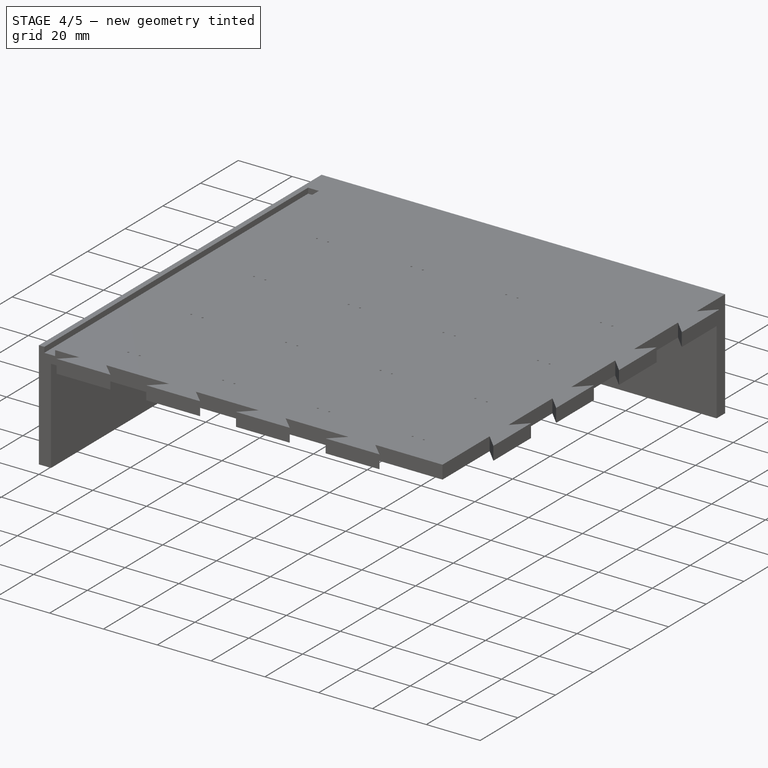
[diagram: stage 4 of 5 — iso view after this stage's code; geometry added in this stage tinted green]
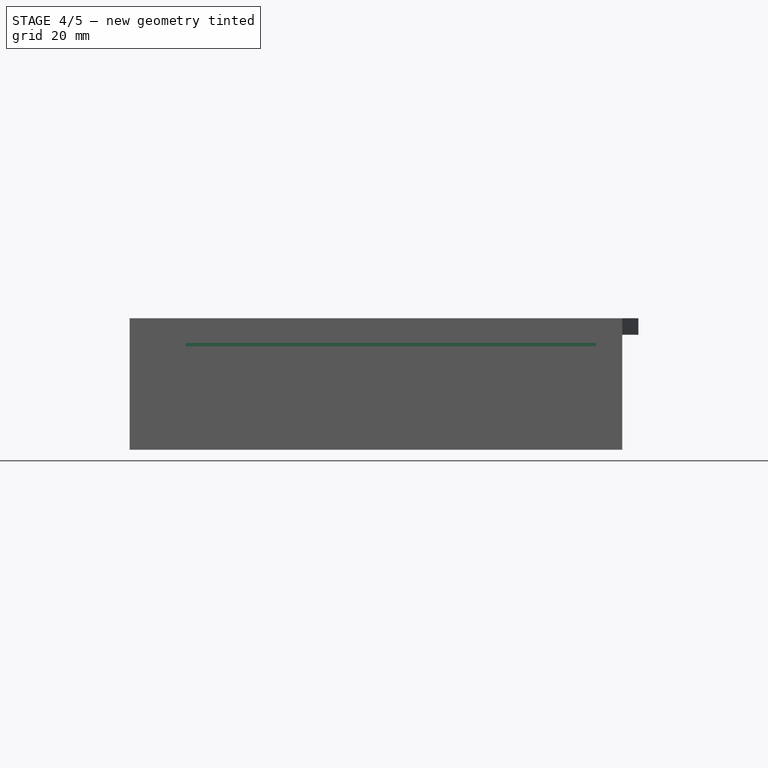
[diagram: stage 4 of 5 — front view after this stage's code; geometry added in this stage tinted green]
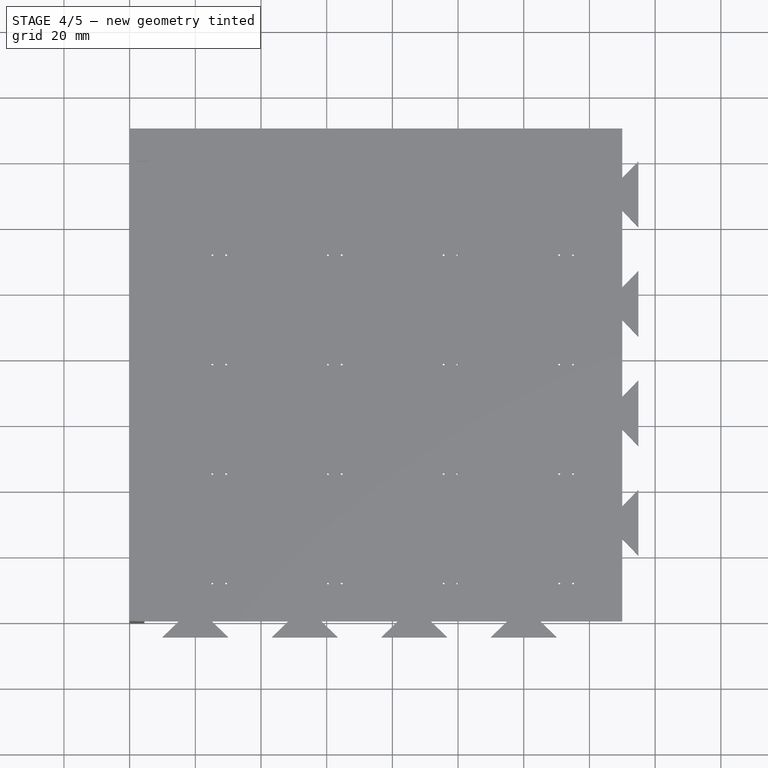
[diagram: stage 4 of 5 — top view after this stage's code; geometry added in this stage tinted green]
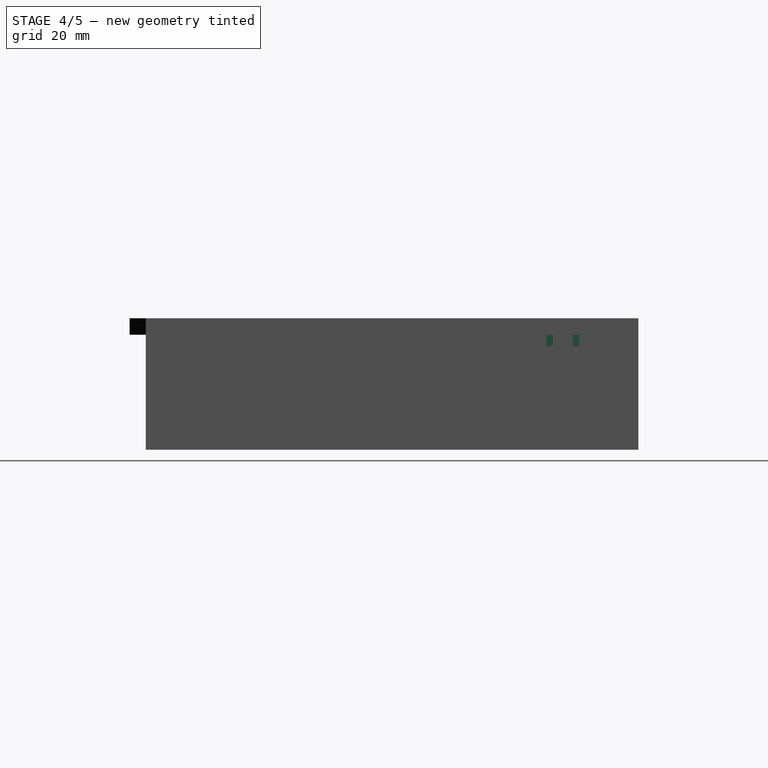
[diagram: stage 4 of 5 — right view after this stage's code; geometry added in this stage tinted green]
FEATURE [Sketcher::SketchObject] Sketch010
  FullyConstrained = true
  MapMode = 5
  Placement = pos=(0,0,-2.5) rot=(1,0,0;3.14159rad)
  Support = -> [Pad005]
  sketch-geometry (42):
    g0: LineSegment StartX=0 StartY=0 StartZ=0 EndX=150 EndY=0 EndZ=0
    g1: LineSegment StartX=150 StartY=0 StartZ=0 EndX=150 EndY=-114 EndZ=0
    g2: LineSegment StartX=150 StartY=-114 StartZ=0 EndX=139.4 EndY=-114 EndZ=0
    g3: LineSegment StartX=139.4 StartY=-114 StartZ=0 EndX=137.7 EndY=-114 EndZ=0
    g4: LineSegment StartX=137.7 StartY=-114 StartZ=0 EndX=137.7 EndY=-116 EndZ=0
    g5: LineSegment StartX=137.7 StartY=-116 StartZ=0 EndX=139.4 EndY=-116 EndZ=0
    g6: LineSegment StartX=139.4 StartY=-116 StartZ=0 EndX=139.4 EndY=-114 EndZ=0
    g7: LineSegment StartX=137.7 StartY=-114 StartZ=0 EndX=127.8 EndY=-114 EndZ=0
    g8: LineSegment StartX=127.8 StartY=-114 StartZ=0 EndX=126.1 EndY=-114 EndZ=0
    g9: LineSegment StartX=126.1 StartY=-114 StartZ=0 EndX=126.1 EndY=-116 EndZ=0
    g10: LineSegment StartX=126.1 StartY=-116 StartZ=0 EndX=127.8 EndY=-116 EndZ=0
    g11: LineSegment StartX=127.8 StartY=-116 StartZ=0 EndX=127.8 EndY=-114 EndZ=0
    g12: LineSegment StartX=126.1 StartY=-114 StartZ=0 EndX=104.2 EndY=-114 EndZ=0
    g13: LineSegment StartX=104.2 StartY=-114 StartZ=0 EndX=102.5 EndY=-114 EndZ=0
    g14: LineSegment StartX=102.5 StartY=-114 StartZ=0 EndX=102.5 EndY=-116 EndZ=0
    g15: LineSegment StartX=102.5 StartY=-116 StartZ=0 EndX=104.2 EndY=-116 EndZ=0
    g16: LineSegment StartX=104.2 StartY=-116 StartZ=0 EndX=104.2 EndY=-114 EndZ=0
    g17: LineSegment StartX=102.5 StartY=-114 StartZ=0 EndX=92.6 EndY=-114 EndZ=0
    g18: LineSegment StartX=92.6 StartY=-114 StartZ=0 EndX=90.9 EndY=-114 EndZ=0
    g19: LineSegment StartX=90.9 StartY=-114 StartZ=0 EndX=90.9 EndY=-116 EndZ=0
    g20: LineSegment StartX=90.9 StartY=-116 StartZ=0 EndX=92.6 EndY=-116 EndZ=0
    g21: LineSegment StartX=92.6 StartY=-116 StartZ=0 EndX=92.6 EndY=-114 EndZ=0
    g22: LineSegment StartX=90.9 StartY=-114 StartZ=0 EndX=69 EndY=-114 EndZ=0
    g23: LineSegment StartX=69 StartY=-114 StartZ=0 EndX=67.3 EndY=-114 EndZ=0
    g24: LineSegment StartX=67.3 StartY=-114 StartZ=0 EndX=67.3 EndY=-116 EndZ=0
    g25: LineSegment StartX=67.3 StartY=-116 StartZ=0 EndX=69 EndY=-116 EndZ=0
    g26: LineSegment StartX=69 StartY=-116 StartZ=0 EndX=69 EndY=-114 EndZ=0
    g27: LineSegment StartX=67.3 StartY=-114 StartZ=0 EndX=57.4 EndY=-114 EndZ=0
    g28: LineSegment StartX=57.4 StartY=-114 StartZ=0 EndX=55.7 EndY=-114 EndZ=0
    g29: LineSegment StartX=55.7 StartY=-114 StartZ=0 EndX=55.7 EndY=-116 EndZ=0
    g30: LineSegment StartX=55.7 StartY=-116 StartZ=0 EndX=57.4 EndY=-116 EndZ=0
    g31: LineSegment StartX=57.4 StartY=-116 StartZ=0 EndX=57.4 EndY=-114 EndZ=0
    g32: LineSegment StartX=55.7 StartY=-114 StartZ=0 EndX=33.8 EndY=-114 EndZ=0
    g33: LineSegment StartX=33.8 StartY=-114 StartZ=0 EndX=32.1 EndY=-114 EndZ=0
    g34: LineSegment StartX=32.1 StartY=-114 StartZ=0 EndX=32.1 EndY=-116 EndZ=0
    g35: LineSegment StartX=32.1 StartY=-116 StartZ=0 EndX=33.8 EndY=-116 EndZ=0
    g36: LineSegment StartX=33.8 StartY=-116 StartZ=0 EndX=33.8 EndY=-114 EndZ=0
    g37: LineSegment StartX=32.1 StartY=-114 StartZ=0 EndX=22.2 EndY=-114 EndZ=0
    g38: LineSegment StartX=22.2 StartY=-114 StartZ=0 EndX=20.5 EndY=-114 EndZ=0
    g39: LineSegment StartX=20.5 StartY=-114 StartZ=0 EndX=20.5 EndY=-116 EndZ=0
    g40: LineSegment StartX=20.5 StartY=-116 StartZ=0 EndX=22.2 EndY=-116 EndZ=0
    g41: LineSegment StartX=22.2 StartY=-116 StartZ=0 EndX=22.2 EndY=-114 EndZ=0
  constraints (118):
    c: Coincident(g0,g-1)
    c: PointOnObject(g0,g-1)
    c: DistanceX(g0,g0) = 150
    c: Coincident(g1,g0)
    c: Vertical(g1)
    c: DistanceY(g1,g1) = 114
    c: Coincident(g2,g1)
    c: Horizontal(g2)
    c: DistanceX(g2,g2) = 10.6
    c: Coincident(g3,g4)
    c: Coincident(g4,g5)
    c: Coincident(g5,g6)
    c: Coincident(g6,g3)
    c: Horizontal(g3)
    c: Horizontal(g5)
    c: Vertical(g4)
    c: Vertical(g6)
    c: Coincident(g3,g2)
    c: DistanceX(g3,g3) = 1.7
    c: DistanceY(g6,g6) = 2
    c: Coincident(g7,g3)
    c: Horizontal(g7)
    c: DistanceX(g7,g7) = 9.9
    c: Coincident(g8,g9)
    c: Coincident(g9,g10)
    c: Coincident(g10,g11)
    c: Coincident(g11,g8)
    c: Horizontal(g8)
    c: Horizontal(g10)
    c: Vertical(g9)
    c: Vertical(g11)
    c: Coincident(g8,g7)
    c: DistanceX(g8,g8) = 1.7
    c: DistanceY(g11,g11) = 2
    c: Coincident(g12,g8)
    c: Horizontal(g12)
    c: DistanceX(g12,g12) = 21.9
    c: Coincident(g13,g14)
    c: Coincident(g14,g15)
    c: Coincident(g15,g16)
    c: Coincident(g16,g13)
    c: Horizontal(g13)
    c: Horizontal(g15)
    c: Vertical(g14)
    c: Vertical(g16)
    c: Coincident(g13,g12)
    c: DistanceX(g13,g13) = 1.7
    c: DistanceY(g16,g16) = 2
    c: Coincident(g17,g13)
    c: Horizontal(g17)
    c: DistanceX(g17,g17) = 9.9
    c: Coincident(g18,g19)
    c: Coincident(g19,g20)
    c: Coincident(g20,g21)
    c: Coincident(g21,g18)
    c: Horizontal(g18)
    c: Horizontal(g20)
    c: Vertical(g19)
    c: Vertical(g21)
    c: Coincident(g18,g17)
    c: DistanceX(g18,g18) = 1.7
    c: DistanceY(g21,g21) = 2
    c: Coincident(g22,g18)
    c: Horizontal(g22)
    c: DistanceX(g22,g22) = 21.9
    c: Coincident(g23,g24)
    c: Coincident(g24,g25)
    c: Coincident(g25,g26)
    c: Coincident(g26,g23)
    c: Horizontal(g23)
    c: Horizontal(g25)
    c: Vertical(g24)
    c: Vertical(g26)
    c: Coincident(g23,g22)
    c: Coincident(g27,g23)
    c: Horizontal(g27)
    c: Coincident(g28,g29)
    c: Coincident(g29,g30)
    c: Coincident(g30,g31)
    c: Coincident(g31,g28)
    c: Horizontal(g28)
    c: Horizontal(g30)
    c: Vertical(g29)
    c: Vertical(g31)
    c: Coincident(g28,g27)
    c: Coincident(g32,g28)
    c: Horizontal(g32)
    c: Coincident(g33,g34)
    c: Coincident(g34,g35)
    c: Coincident(g35,g36)
    c: Coincident(g36,g33)
    c: Horizontal(g33)
    c: Horizontal(g35)
    c: Vertical(g34)
    c: Vertical(g36)
    c: Coincident(g33,g32)
    c: DistanceX(g23,g23) = 1.7
    c: DistanceX(g27,g27) = 9.9
    c: DistanceX(g28,g28) = 1.7
    c: DistanceX(g32,g32) = 21.9
    c: DistanceX(g33,g33) = 1.7
    c: Coincident(g37,g33)
    c: Horizontal(g37)
    c: Coincident(g38,g39)
    c: Coincident(g39,g40)
    c: Coincident(g40,g41)
    c: Coincident(g41,g38)
    c: Horizontal(g38)
    c: Horizontal(g40)
    c: Vertical(g39)
    c: Vertical(g41)
    c: Coincident(g38,g37)
    c: DistanceX(g37,g37) = 9.9
    c: DistanceX(g38,g38) = 1.7
    c: DistanceY(g26,g26) = 2
    c: DistanceY(g31,g31) = 2
    c: DistanceY(g36,g36) = 2
    c: DistanceY(g41,g41) = 2
FEATURE [PartDesign::Pocket] Pocket003
  BaseFeature = -> Pad005
  Length = 2.5
  Length2 = 100
  Profile = -> Sketch010
  Type = 0
FEATURE [Sketcher::SketchObject] Sketch011
  FullyConstrained = true
  MapMode = 5
  Placement = pos=(0,0,0) rot=(1,0,0;3.14159rad)
  Support = -> [Pocket003]
  sketch-geometry (12):
    g0: LineSegment StartX=0 StartY=0 StartZ=0 EndX=150 EndY=0 EndZ=0
    g1: LineSegment StartX=150 StartY=0 StartZ=0 EndX=150 EndY=-132 EndZ=0
    g2: LineSegment StartX=150 StartY=-132 StartZ=0 EndX=142 EndY=-132 EndZ=0
    g3: LineSegment StartX=142 StartY=-132 StartZ=0 EndX=22 EndY=-132 EndZ=0
    g4: LineSegment StartX=22 StartY=-132 StartZ=0 EndX=22 EndY=-130 EndZ=0
    g5: LineSegment StartX=22 StartY=-130 StartZ=0 EndX=142 EndY=-130 EndZ=0
    g6: LineSegment StartX=142 StartY=-130 StartZ=0 EndX=142 EndY=-132 EndZ=0
    g7: LineSegment StartX=142 StartY=-130 StartZ=0 EndX=142 EndY=-124 EndZ=0
    g8: LineSegment StartX=142 StartY=-124 StartZ=0 EndX=17 EndY=-124 EndZ=0
    g9: LineSegment StartX=17 StartY=-124 StartZ=0 EndX=17 EndY=-122 EndZ=0
    g10: LineSegment StartX=17 StartY=-122 StartZ=0 EndX=142 EndY=-122 EndZ=0
    g11: LineSegment StartX=142 StartY=-122 StartZ=0 EndX=142 EndY=-124 EndZ=0
  constraints (34):
    c: Coincident(g0,g-1)
    c: PointOnObject(g0,g-1)
    c: DistanceX(g0,g0) = 150
    c: Coincident(g1,g0)
    c: Vertical(g1)
    c: DistanceY(g1,g1) = 132
    c: Coincident(g2,g1)
    c: Horizontal(g2)
    c: DistanceX(g2,g2) = 8
    c: Coincident(g3,g4)
    c: Coincident(g4,g5)
    c: Coincident(g5,g6)
    c: Coincident(g6,g3)
    c: Horizontal(g3)
    c: Horizontal(g5)
    c: Vertical(g4)
    c: Vertical(g6)
    c: Coincident(g3,g2)
    c: Coincident(g7,g5)
    c: Vertical(g7)
    c: Coincident(g8,g9)
    c: Coincident(g9,g10)
    c: Coincident(g10,g11)
    c: Coincident(g11,g8)
    c: Horizontal(g8)
    c: Horizontal(g10)
    c: Vertical(g9)
    c: Vertical(g11)
    c: Coincident(g8,g7)
    c: DistanceX(g3,g3) = 120
    c: DistanceX(g8,g8) = 125
    c: DistanceY(g6,g6) = 2
    c: DistanceY(g7,g7) = 6
    c: DistanceY(g11,g11) = 2
FEATURE [PartDesign::Pad] Pad006
  BaseFeature = -> Pocket003
  Direction = (1,1,1)
  Length = 3.5
  Length2 = 100
  Profile = -> Sketch011
  Type = 0
FEATURE [Sketcher::SketchObject] Sketch012
  FullyConstrained = true
  MapMode = 5
  Placement = pos=(0,0,-3.5) rot=(1,0,0;3.14159rad)
  Support = -> [Pad006]
  sketch-geometry (22):
    g0: LineSegment StartX=0 StartY=0 StartZ=0 EndX=150 EndY=0 EndZ=0
    g1: LineSegment StartX=150 StartY=0 StartZ=0 EndX=150 EndY=-117.8 EndZ=0
    g2: LineSegment StartX=150 StartY=-117.8 StartZ=0 EndX=125 EndY=-117.8 EndZ=0
    g3: LineSegment StartX=125 StartY=-117.8 StartZ=0 EndX=123.3 EndY=-117.8 EndZ=0
    g4: LineSegment StartX=123.3 StartY=-117.8 StartZ=0 EndX=123.3 EndY=-119.8 EndZ=0
    g5: LineSegment StartX=123.3 StartY=-119.8 StartZ=0 EndX=125 EndY=-119.8 EndZ=0
    g6: LineSegment StartX=125 StartY=-119.8 StartZ=0 EndX=125 EndY=-117.8 EndZ=0
    g7: LineSegment StartX=123.3 StartY=-117.8 StartZ=0 EndX=98.3 EndY=-117.8 EndZ=0
    g8: LineSegment StartX=98.3 StartY=-117.8 StartZ=0 EndX=96.6 EndY=-117.8 EndZ=0
    g9: LineSegment StartX=96.6 StartY=-117.8 StartZ=0 EndX=96.6 EndY=-119.8 EndZ=0
    g10: LineSegment StartX=96.6 StartY=-119.8 StartZ=0 EndX=98.3 EndY=-119.8 EndZ=0
    g11: LineSegment StartX=98.3 StartY=-119.8 StartZ=0 EndX=98.3 EndY=-117.8 EndZ=0
    g12: LineSegment StartX=96.6 StartY=-117.8 StartZ=0 EndX=71.6 EndY=-117.8 EndZ=0
    g13: LineSegment StartX=71.6 StartY=-117.8 StartZ=0 EndX=69.6 EndY=-117.8 EndZ=0
    g14: LineSegment StartX=69.6 StartY=-117.8 StartZ=0 EndX=69.6 EndY=-119.8 EndZ=0
    g15: LineSegment StartX=69.6 StartY=-119.8 StartZ=0 EndX=71.6 EndY=-119.8 EndZ=0
    g16: LineSegment StartX=71.6 StartY=-119.8 StartZ=0 EndX=71.6 EndY=-117.8 EndZ=0
    g17: LineSegment StartX=69.6 StartY=-117.8 StartZ=0 EndX=44.6 EndY=-117.8 EndZ=0
    g18: LineSegment StartX=44.6 StartY=-117.8 StartZ=0 EndX=42.6 EndY=-117.8 EndZ=0
    g19: LineSegment StartX=42.6 StartY=-117.8 StartZ=0 EndX=42.6 EndY=-119.8 EndZ=0
    g20: LineSegment StartX=42.6 StartY=-119.8 StartZ=0 EndX=44.6 EndY=-119.8 EndZ=0
    g21: LineSegment StartX=44.6 StartY=-119.8 StartZ=0 EndX=44.6 EndY=-117.8 EndZ=0
  constraints (62):
    c: Coincident(g0,g-1)
    c: PointOnObject(g0,g-1)
    c: DistanceX(g0,g0) = 150
    c: Coincident(g1,g0)
    c: Vertical(g1)
    c: DistanceY(g1,g1) = 117.8
    c: Coincident(g2,g1)
    c: Horizontal(g2)
    c: DistanceX(g2,g2) = 25
    c: Coincident(g3,g4)
    c: Coincident(g4,g5)
    c: Coincident(g5,g6)
    c: Coincident(g6,g3)
    c: Horizontal(g3)
    c: Horizontal(g5)
    c: Vertical(g4)
    c: Vertical(g6)
    c: Coincident(g3,g2)
    c: DistanceX(g3,g3) = 1.7
    c: DistanceY(g6,g6) = 2
    c: Coincident(g7,g3)
    c: Horizontal(g7)
    c: DistanceX(g7,g7) = 25
    c: Coincident(g8,g9)
    c: Coincident(g9,g10)
    c: Coincident(g10,g11)
    c: Coincident(g11,g8)
    c: Horizontal(g8)
    c: Horizontal(g10)
    c: Vertical(g9)
    c: Vertical(g11)
    c: Coincident(g8,g7)
    c: Coincident(g12,g8)
    c: Horizontal(g12)
    c: DistanceX(g8,g8) = 1.7
    c: DistanceY(g11,g11) = 2
    c: DistanceX(g12,g12) = 25
    c: Coincident(g13,g14)
    c: Coincident(g14,g15)
    c: Coincident(g15,g16)
    c: Coincident(g16,g13)
    c: Horizontal(g13)
    c: Horizontal(g15)
    c: Vertical(g14)
    c: Vertical(g16)
    c: Coincident(g13,g12)
    c: DistanceX(g13,g13) = 2
    c: DistanceY(g16,g16) = 2
    c: Coincident(g17,g13)
    c: Horizontal(g17)
    c: DistanceX(g17,g17) = 25
    c: Coincident(g18,g19)
    c: Coincident(g19,g20)
    c: Coincident(g20,g21)
    c: Coincident(g21,g18)
    c: Horizontal(g18)
    c: Horizontal(g20)
    c: Vertical(g19)
    c: Vertical(g21)
    c: Coincident(g18,g17)
    c: DistanceX(g18,g18) = 2
    c: DistanceY(g21,g21) = 2
FEATURE [PartDesign::Pocket] Pocket004
  BaseFeature = -> Pad006
  Length = 2
  Length2 = 100
  Profile = -> Sketch012
  Type = 0
FEATURE [Sketcher::SketchObject] Sketch013
  FullyConstrained = true
  MapMode = 5
  Placement = pos=(0,0,-3.5) rot=(1,0,0;3.14159rad)
  Support = -> [Pocket004]
  sketch-geometry (22):
    g0: LineSegment StartX=0 StartY=0 StartZ=0 EndX=150 EndY=0 EndZ=0
    g1: LineSegment StartX=150 StartY=0 StartZ=0 EndX=150 EndY=-122 EndZ=0
    g2: LineSegment StartX=150 StartY=-122 StartZ=0 EndX=125 EndY=-122 EndZ=0
    g3: LineSegment StartX=125 StartY=-122 StartZ=0 EndX=123.3 EndY=-122 EndZ=0
    g4: LineSegment StartX=123.3 StartY=-122 StartZ=0 EndX=123.3 EndY=-124 EndZ=0
    g5: LineSegment StartX=123.3 StartY=-124 StartZ=0 EndX=125 EndY=-124 EndZ=0
    g6: LineSegment StartX=125 StartY=-124 StartZ=0 EndX=125 EndY=-122 EndZ=0
    g7: LineSegment StartX=123.3 StartY=-122 StartZ=0 EndX=98.3 EndY=-122 EndZ=0
    g8: LineSegment StartX=98.3 StartY=-122 StartZ=0 EndX=96.6 EndY=-122 EndZ=0
    g9: LineSegment StartX=96.6 StartY=-122 StartZ=0 EndX=96.6 EndY=-124 EndZ=0
    g10: LineSegment StartX=96.6 StartY=-124 StartZ=0 EndX=98.3 EndY=-124 EndZ=0
    g11: LineSegment StartX=98.3 StartY=-124 StartZ=0 EndX=98.3 EndY=-122 EndZ=0
    g12: LineSegment StartX=96.6 StartY=-122 StartZ=0 EndX=71.6 EndY=-122 EndZ=0
    g13: LineSegment StartX=71.6 StartY=-122 StartZ=0 EndX=69.6 EndY=-122 EndZ=0
    g14: LineSegment StartX=69.6 StartY=-122 StartZ=0 EndX=69.6 EndY=-124 EndZ=0
    g15: LineSegment StartX=69.6 StartY=-124 StartZ=0 EndX=71.6 EndY=-124 EndZ=0
    g16: LineSegment StartX=71.6 StartY=-124 StartZ=0 EndX=71.6 EndY=-122 EndZ=0
    g17: LineSegment StartX=69.6 StartY=-122 StartZ=0 EndX=44.6 EndY=-122 EndZ=0
    g18: LineSegment StartX=44.6 StartY=-122 StartZ=0 EndX=42.6 EndY=-122 EndZ=0
    g19: LineSegment StartX=42.6 StartY=-122 StartZ=0 EndX=42.6 EndY=-124 EndZ=0
    g20: LineSegment StartX=42.6 StartY=-124 StartZ=0 EndX=44.6 EndY=-124 EndZ=0
    g21: LineSegment StartX=44.6 StartY=-124 StartZ=0 EndX=44.6 EndY=-122 EndZ=0
  constraints (62):
    c: Coincident(g0,g-1)
    c: Horizontal(g0)
    c: DistanceX(g0,g0) = 150
    c: Coincident(g1,g0)
    c: Vertical(g1)
    c: DistanceY(g1,g1) = 122
    c: Coincident(g2,g1)
    c: Horizontal(g2)
    c: DistanceX(g2,g2) = 25
    c: Coincident(g3,g4)
    c: Coincident(g4,g5)
    c: Coincident(g5,g6)
    c: Coincident(g6,g3)
    c: Horizontal(g3)
    c: Horizontal(g5)
    c: Vertical(g4)
    c: Vertical(g6)
    c: Coincident(g3,g2)
    c: DistanceX(g5,g5) = 1.7
    c: DistanceY(g6,g6) = 2
    c: Coincident(g7,g3)
    c: Horizontal(g7)
    c: DistanceX(g7,g7) = 25
    c: Coincident(g8,g9)
    c: Coincident(g9,g10)
    c: Coincident(g10,g11)
    c: Coincident(g11,g8)
    c: Horizontal(g8)
    c: Horizontal(g10)
    c: Vertical(g9)
    c: Vertical(g11)
    c: Coincident(g8,g7)
    c: DistanceX(g8,g8) = 1.7
    c: DistanceY(g11,g11) = 2
    c: Coincident(g12,g8)
    c: Horizontal(g12)
    c: DistanceX(g12,g12) = 25
    c: Coincident(g13,g14)
    c: Coincident(g14,g15)
    c: Coincident(g15,g16)
    c: Coincident(g16,g13)
    c: Horizontal(g13)
    c: Horizontal(g15)
    c: Vertical(g14)
    c: Vertical(g16)
    c: Coincident(g13,g12)
    c: DistanceX(g13,g13) = 2
    c: DistanceY(g16,g16) = 2
    c: Coincident(g17,g13)
    c: Horizontal(g17)
    c: DistanceX(g17,g17) = 25
    c: Coincident(g18,g19)
    c: Coincident(g19,g20)
    c: Coincident(g20,g21)
    c: Coincident(g21,g18)
    c: Horizontal(g18)
    c: Horizontal(g20)
    c: Vertical(g19)
    c: Vertical(g21)
    c: Coincident(g18,g17)
    c: DistanceX(g18,g18) = 2
    c: DistanceY(g21,g21) = 2
FEATURE [PartDesign::Pocket] Pocket005
  BaseFeature = -> Pocket004
  Length = 3.5
  Length2 = 100
  Profile = -> Sketch013
  Type = 0
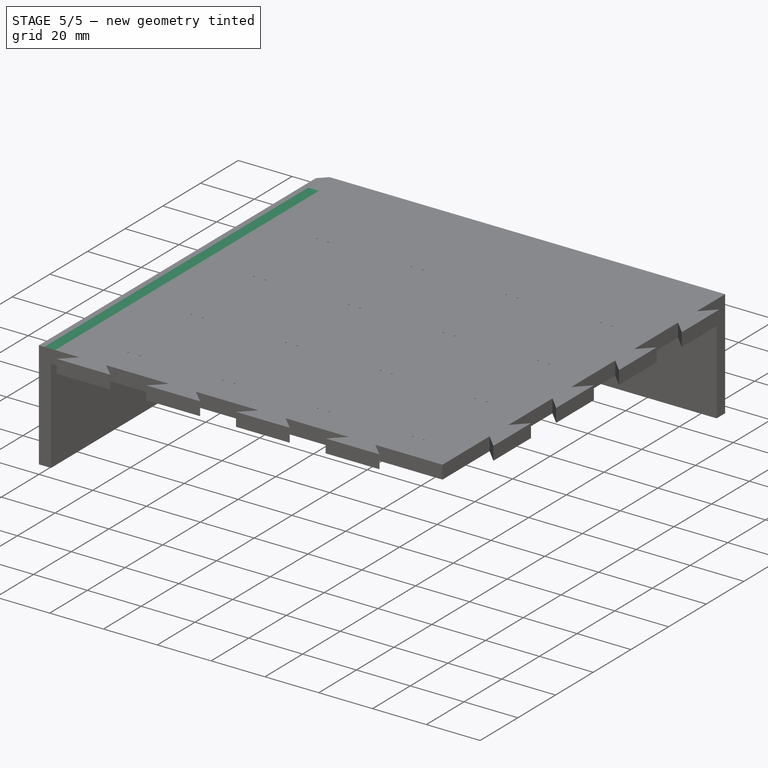
[diagram: stage 5 of 5 — iso view after this stage's code; geometry added in this stage tinted green]
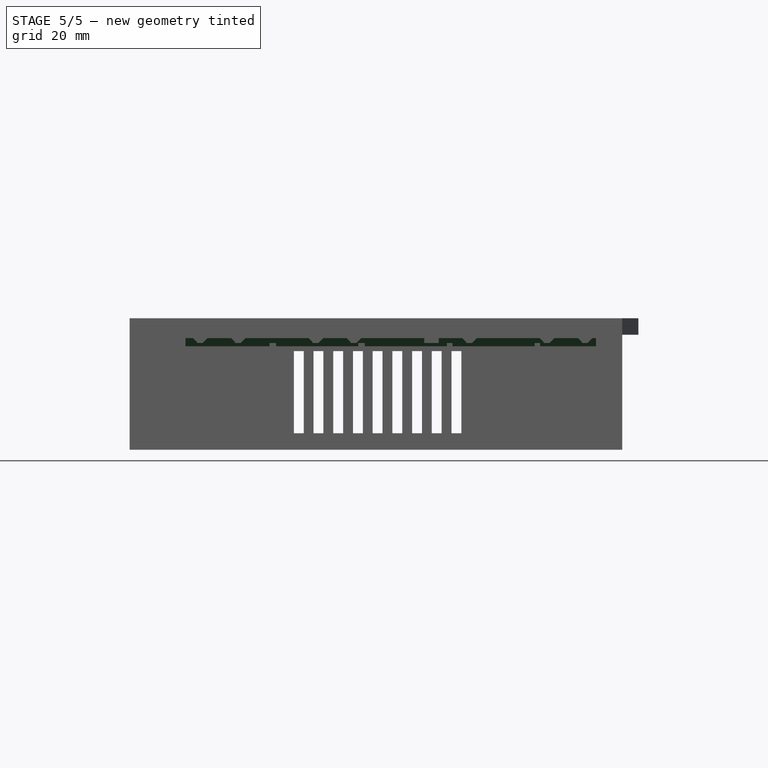
[diagram: stage 5 of 5 — front view after this stage's code; geometry added in this stage tinted green]
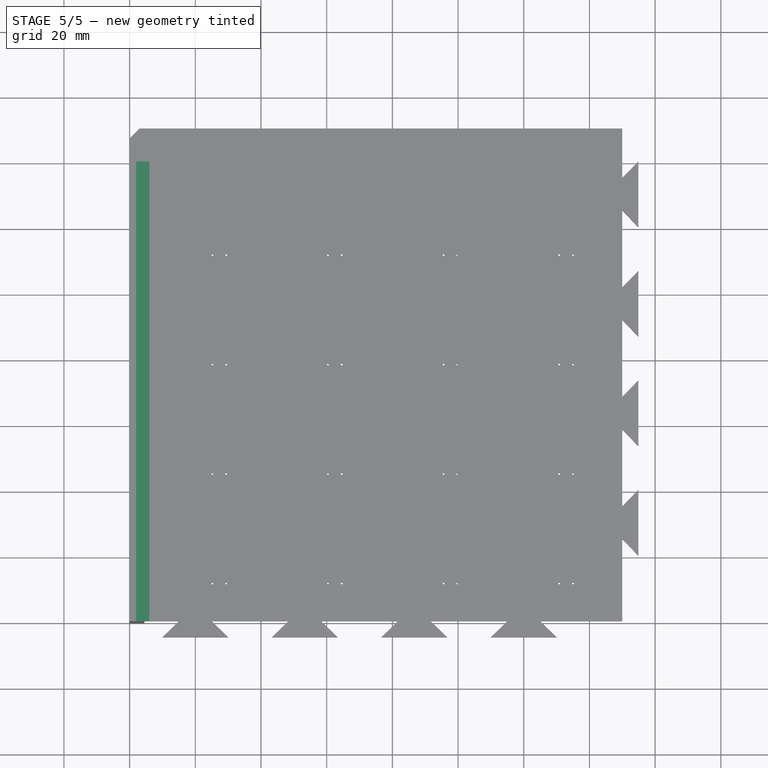
[diagram: stage 5 of 5 — top view after this stage's code; geometry added in this stage tinted green]
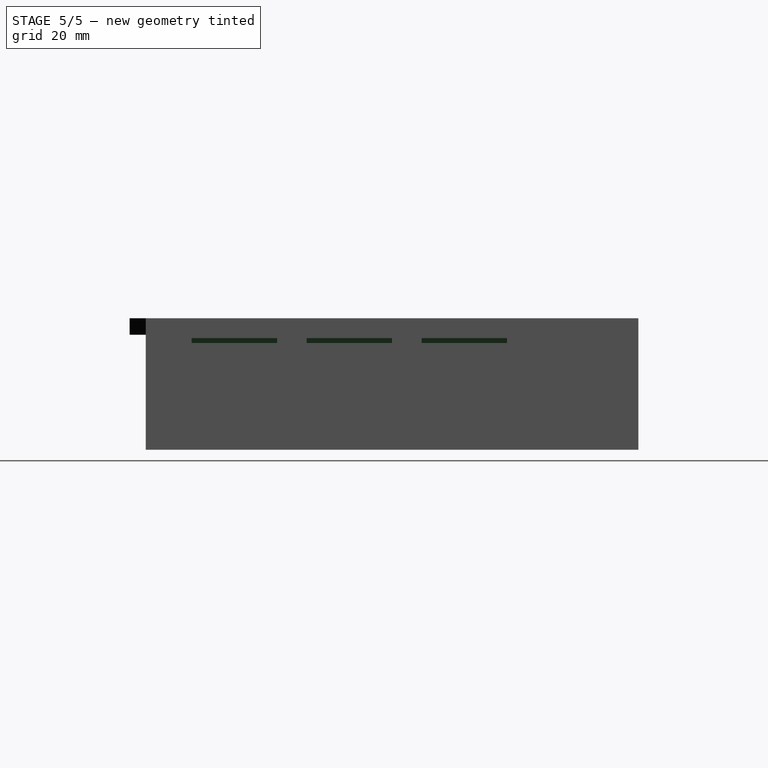
[diagram: stage 5 of 5 — right view after this stage's code; geometry added in this stage tinted green]
FEATURE [PartDesign::Chamfer] Chamfer
  Angle = 45
  Base = -> Pocket005 [Edge643,Edge633,Edge623,Edge620,Edge609,Edge599,Edge589,Edge586,Edge507,Edge497,Edge487,Edge484,Edge473,Edge463,Edge450,Edge518,Edge521,Edge453,Edge531,Edge541,Edge552,Edge555,Edge565,Edge575,Edge654,Edge657,Edge667,Edge677,Edge688,Edge691,Edge701,Edge711,Edge851,Edge841,Edge831,Edge828,Edge817,Edge807,Edge779,Edge769,+6 more]
  BaseFeature = -> Pocket005
  ChamferType = 0
  FlipDirection = false
  Size = 1.45
  Size2 = 1
  SupportTransform = false
FEATURE [PartDesign::Chamfer] Chamfer001
  Angle = 45
  Base = -> Chamfer [Edge981,Edge973,Edge1007,Edge965,Edge1003,Edge957,Edge949,Edge999,Edge941,Edge995,Edge933,Edge925,Edge991,Edge918]
  BaseFeature = -> Chamfer
  ChamferType = 0
  FlipDirection = false
  Size = 1.45
  Size2 = 1
  SupportTransform = false
FEATURE [PartDesign::Chamfer] Chamfer002
  Angle = 45
  Base = -> Chamfer001 [Edge1060,Edge1062,Edge1065,Edge1068,Edge1071,Edge1076]
  BaseFeature = -> Chamfer001
  ChamferType = 0
  FlipDirection = false
  Size = 1.99
  Size2 = 1
  SupportTransform = false
FEATURE [PartDesign::Chamfer] Chamfer003
  Angle = 45
  Base = -> Chamfer002 [Edge1117]
  BaseFeature = -> Chamfer002
  ChamferType = 0
  FlipDirection = false
  Size = 3
  Size2 = 1
  SupportTransform = false
FEATURE [Sketcher::SketchObject] Sketch014
  FullyConstrained = true
  MapMode = 5
  Placement = pos=(0,150,0) rot=(0,0.707107,0.707107;3.14159rad)
  Support = -> [Chamfer003]
  sketch-geometry (46):
    g0: LineSegment StartX=0 StartY=0 StartZ=0 EndX=-50 EndY=0 EndZ=0
    g1: LineSegment StartX=-50 StartY=0 StartZ=0 EndX=-50 EndY=-5 EndZ=0
    g2: LineSegment StartX=-50 StartY=-5 StartZ=0 EndX=-53 EndY=-5 EndZ=0
    g3: LineSegment StartX=-53 StartY=-5 StartZ=0 EndX=-53 EndY=-30 EndZ=0
    g4: LineSegment StartX=-53 StartY=-30 StartZ=0 EndX=-50 EndY=-30 EndZ=0
    g5: LineSegment StartX=-50 StartY=-30 StartZ=0 EndX=-50 EndY=-5 EndZ=0
    g6: LineSegment StartX=-53 StartY=-5 StartZ=0 EndX=-56 EndY=-5 EndZ=0
    g7: LineSegment StartX=-56 StartY=-5 StartZ=0 EndX=-59 EndY=-5 EndZ=0
    g8: LineSegment StartX=-59 StartY=-5 StartZ=0 EndX=-59 EndY=-30 EndZ=0
    g9: LineSegment StartX=-59 StartY=-30 StartZ=0 EndX=-56 EndY=-30 EndZ=0
    g10: LineSegment StartX=-56 StartY=-30 StartZ=0 EndX=-56 EndY=-5 EndZ=0
    g11: LineSegment StartX=-59 StartY=-5 StartZ=0 EndX=-62 EndY=-5 EndZ=0
    g12: LineSegment StartX=-62 StartY=-5 StartZ=0 EndX=-65 EndY=-5 EndZ=0
    g13: LineSegment StartX=-65 StartY=-5 StartZ=0 EndX=-65 EndY=-30 EndZ=0
    g14: LineSegment StartX=-65 StartY=-30 StartZ=0 EndX=-62 EndY=-30 EndZ=0
    g15: LineSegment StartX=-62 StartY=-30 StartZ=0 EndX=-62 EndY=-5 EndZ=0
    g16: LineSegment StartX=-65 StartY=-5 StartZ=0 EndX=-68 EndY=-5 EndZ=0
    g17: LineSegment StartX=-68 StartY=-5 StartZ=0 EndX=-71 EndY=-5 EndZ=0
    g18: LineSegment StartX=-71 StartY=-5 StartZ=0 EndX=-71 EndY=-30 EndZ=0
    g19: LineSegment StartX=-71 StartY=-30 StartZ=0 EndX=-68 EndY=-30 EndZ=0
    g20: LineSegment StartX=-68 StartY=-30 StartZ=0 EndX=-68 EndY=-5 EndZ=0
    g21: LineSegment StartX=-71 StartY=-5 StartZ=0 EndX=-74 EndY=-5 EndZ=0
    g22: LineSegment StartX=-74 StartY=-5 StartZ=0 EndX=-77 EndY=-5 EndZ=0
    g23: LineSegment StartX=-77 StartY=-5 StartZ=0 EndX=-77 EndY=-30 EndZ=0
    g24: LineSegment StartX=-77 StartY=-30 StartZ=0 EndX=-74 EndY=-30 EndZ=0
    g25: LineSegment StartX=-74 StartY=-30 StartZ=0 EndX=-74 EndY=-5 EndZ=0
    g26: LineSegment StartX=-77 StartY=-5 StartZ=0 EndX=-80 EndY=-5 EndZ=0
    g27: LineSegment StartX=-80 StartY=-5 StartZ=0 EndX=-83 EndY=-5 EndZ=0
    g28: LineSegment StartX=-83 StartY=-5 StartZ=0 EndX=-83 EndY=-30 EndZ=0
    g29: LineSegment StartX=-83 StartY=-30 StartZ=0 EndX=-80 EndY=-30 EndZ=0
    g30: LineSegment StartX=-80 StartY=-30 StartZ=0 EndX=-80 EndY=-5 EndZ=0
    g31: LineSegment StartX=-83 StartY=-5 StartZ=0 EndX=-86 EndY=-5 EndZ=0
    g32: LineSegment StartX=-86 StartY=-5 StartZ=0 EndX=-89 EndY=-5 EndZ=0
    g33: LineSegment StartX=-89 StartY=-5 StartZ=0 EndX=-89 EndY=-30 EndZ=0
    g34: LineSegment StartX=-89 StartY=-30 StartZ=0 EndX=-86 EndY=-30 EndZ=0
    g35: LineSegment StartX=-86 StartY=-30 StartZ=0 EndX=-86 EndY=-5 EndZ=0
    g36: LineSegment StartX=-89 StartY=-5 StartZ=0 EndX=-92 EndY=-5 EndZ=0
    g37: LineSegment StartX=-92 StartY=-5 StartZ=0 EndX=-95 EndY=-5 EndZ=0
    g38: LineSegment StartX=-95 StartY=-5 StartZ=0 EndX=-95 EndY=-30 EndZ=0
    g39: LineSegment StartX=-95 StartY=-30 StartZ=0 EndX=-92 EndY=-30 EndZ=0
    g40: LineSegment StartX=-92 StartY=-30 StartZ=0 EndX=-92 EndY=-5 EndZ=0
    g41: LineSegment StartX=-95 StartY=-5 StartZ=0 EndX=-98 EndY=-5 EndZ=0
    g42: LineSegment StartX=-98 StartY=-5 StartZ=0 EndX=-101 EndY=-5 EndZ=0
    g43: LineSegment StartX=-101 StartY=-5 StartZ=0 EndX=-101 EndY=-30 EndZ=0
    g44: LineSegment StartX=-101 StartY=-30 StartZ=0 EndX=-98 EndY=-30 EndZ=0
    g45: LineSegment StartX=-98 StartY=-30 StartZ=0 EndX=-98 EndY=-5 EndZ=0
  constraints (129):
    c: Coincident(g0,g-1)
    c: PointOnObject(g0,g-1)
    c: DistanceX(g0,g0) = 50
    c: Coincident(g1,g0)
    c: Vertical(g1)
    c: DistanceY(g1,g1) = 5
    c: Coincident(g2,g3)
    c: Coincident(g3,g4)
    c: Coincident(g4,g5)
    c: Coincident(g5,g2)
    c: Horizontal(g2)
    c: Horizontal(g4)
    c: Vertical(g3)
    c: Vertical(g5)
    c: Coincident(g2,g1)
    c: DistanceX(g2,g2) = 3
    c: DistanceY(g5,g5) = 25
    c: Coincident(g6,g2)
    c: Horizontal(g6)
    c: DistanceX(g6,g6) = 3
    c: Coincident(g7,g8)
    c: Coincident(g8,g9)
    c: Coincident(g9,g10)
    c: Coincident(g10,g7)
    c: Horizontal(g7)
    c: Horizontal(g9)
    c: Vertical(g8)
    c: Vertical(g10)
    c: Coincident(g7,g6)
    c: DistanceX(g7,g7) = 3
    c: Coincident(g11,g7)
    c: Horizontal(g11)
    c: DistanceX(g11,g11) = 3
    c: Coincident(g12,g13)
    c: Coincident(g13,g14)
    c: Coincident(g14,g15)
    c: Coincident(g15,g12)
    c: Horizontal(g12)
    c: Horizontal(g14)
    c: Vertical(g13)
    c: Vertical(g15)
    c: Coincident(g12,g11)
    c: Coincident(g16,g12)
    c: Horizontal(g16)
    c: Coincident(g17,g18)
    c: Coincident(g18,g19)
    c: Coincident(g19,g20)
    c: Coincident(g20,g17)
    c: Horizontal(g17)
    c: Horizontal(g19)
    c: Vertical(g18)
    c: Vertical(g20)
    c: Coincident(g17,g16)
    c: Coincident(g21,g17)
    c: Horizontal(g21)
    c: DistanceX(g12,g12) = 3
    c: DistanceX(g16,g16) = 3
    c: DistanceX(g17,g17) = 3
    c: DistanceX(g21,g21) = 3
    c: Coincident(g22,g23)
    c: Coincident(g23,g24)
    c: Coincident(g24,g25)
    c: Coincident(g25,g22)
    c: Horizontal(g22)
    c: Horizontal(g24)
    c: Vertical(g23)
    c: Vertical(g25)
    c: Coincident(g22,g21)
    c: Coincident(g26,g22)
    c: Horizontal(g26)
    c: Coincident(g27,g28)
    c: Coincident(g28,g29)
    c: Coincident(g29,g30)
    c: Coincident(g30,g27)
    c: Horizontal(g27)
    c: Horizontal(g29)
    c: Vertical(g28)
    c: Vertical(g30)
    c: Coincident(g27,g26)
    c: Coincident(g31,g27)
    c: Horizontal(g31)
    c: Coincident(g32,g33)
    c: Coincident(g33,g34)
    c: Coincident(g34,g35)
    c: Coincident(g35,g32)
    c: Horizontal(g32)
    c: Horizontal(g34)
    c: Vertical(g33)
    c: Vertical(g35)
    c: Coincident(g32,g31)
    c: DistanceX(g22,g22) = 3
    c: DistanceX(g26,g26) = 3
    c: DistanceX(g27,g27) = 3
    c: DistanceX(g31,g31) = 3
    c: DistanceX(g32,g32) = 3
    c: DistanceY(g10,g10) = 25
    c: DistanceY(g15,g15) = 25
    c: DistanceY(g20,g20) = 25
    c: DistanceY(g25,g25) = 25
    c: DistanceY(g30,g30) = 25
    c: DistanceY(g35,g35) = 25
    c: Coincident(g36,g32)
    c: Horizontal(g36)
    c: Coincident(g37,g38)
    c: Coincident(g38,g39)
    c: Coincident(g39,g40)
    c: Coincident(g40,g37)
    c: Horizontal(g37)
    c: Horizontal(g39)
    c: Vertical(g38)
    c: Vertical(g40)
    c: Coincident(g37,g36)
    c: Coincident(g41,g37)
    c: Horizontal(g41)
    c: Coincident(g42,g43)
    c: Coincident(g43,g44)
    c: Coincident(g44,g45)
    c: Coincident(g45,g42)
    c: Horizontal(g42)
    c: Horizontal(g44)
    c: Vertical(g43)
    c: Vertical(g45)
    c: Coincident(g42,g41)
    c: DistanceX(g36,g36) = 3
    c: DistanceX(g37,g37) = 3
    c: DistanceX(g41,g41) = 3
    c: DistanceX(g42,g42) = 3
    c: DistanceY(g40,g40) = 25
    c: DistanceY(g45,g45) = 25
FEATURE [PartDesign::Pocket] Pocket006
  BaseFeature = -> Chamfer003
  Length = 4.5
  Length2 = 100
  Profile = -> Sketch014
  Type = 0
FEATURE [PartDesign::Body] Body
  Group = -> [Sketch,Pad,Sketch001,Hole,LinearPattern,Sketch002,Pad001,LinearPattern001,Sketch003,Pad002,LinearPattern002,Sketch004,Pocket,Sketch005,Pocket001,Sketch006,Pad003,Sketch007,Pocket002,Sketch008,Pad004,LinearPattern003,Sketch009,Pad005,Sketch010,Pocket003,Sketch011,Pad006,Sketch012,Pocket004,Sketch013,Pocket005,Chamfer,Chamfer001,Chamfer002,Chamfer003,Sketch014,Pocket006]
  Origin = -> Origin
  Tip = -> Pocket006
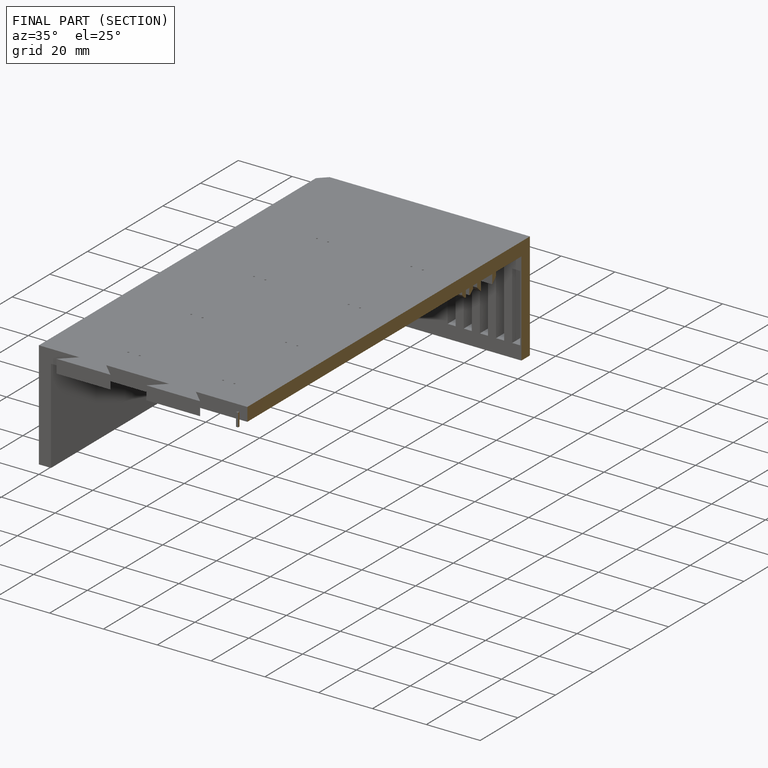
[diagram: finished part — half-section view (interior)]
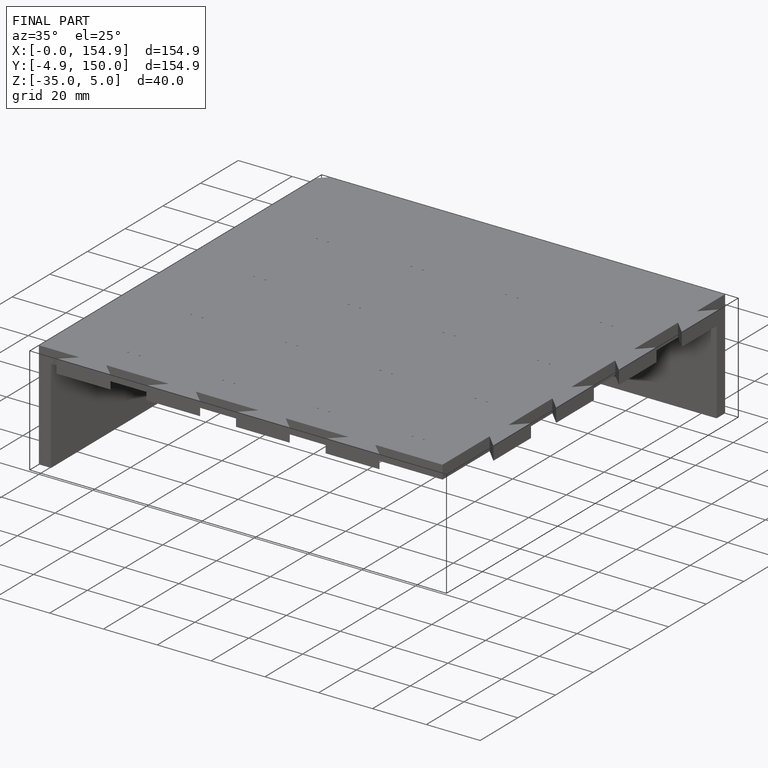
[diagram: finished part — iso view with bounding-box wireframe]
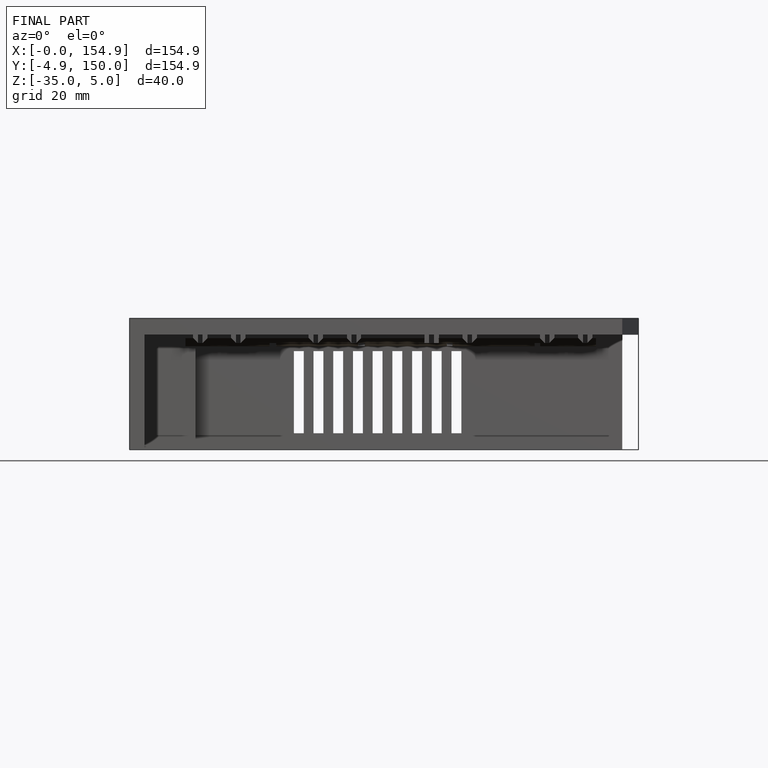
[diagram: finished part — front view with bounding-box wireframe]
